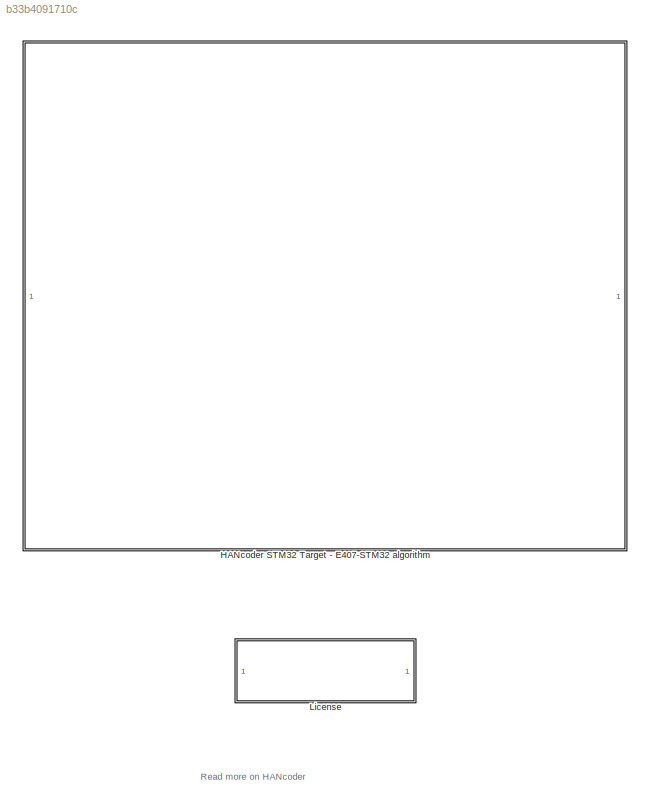
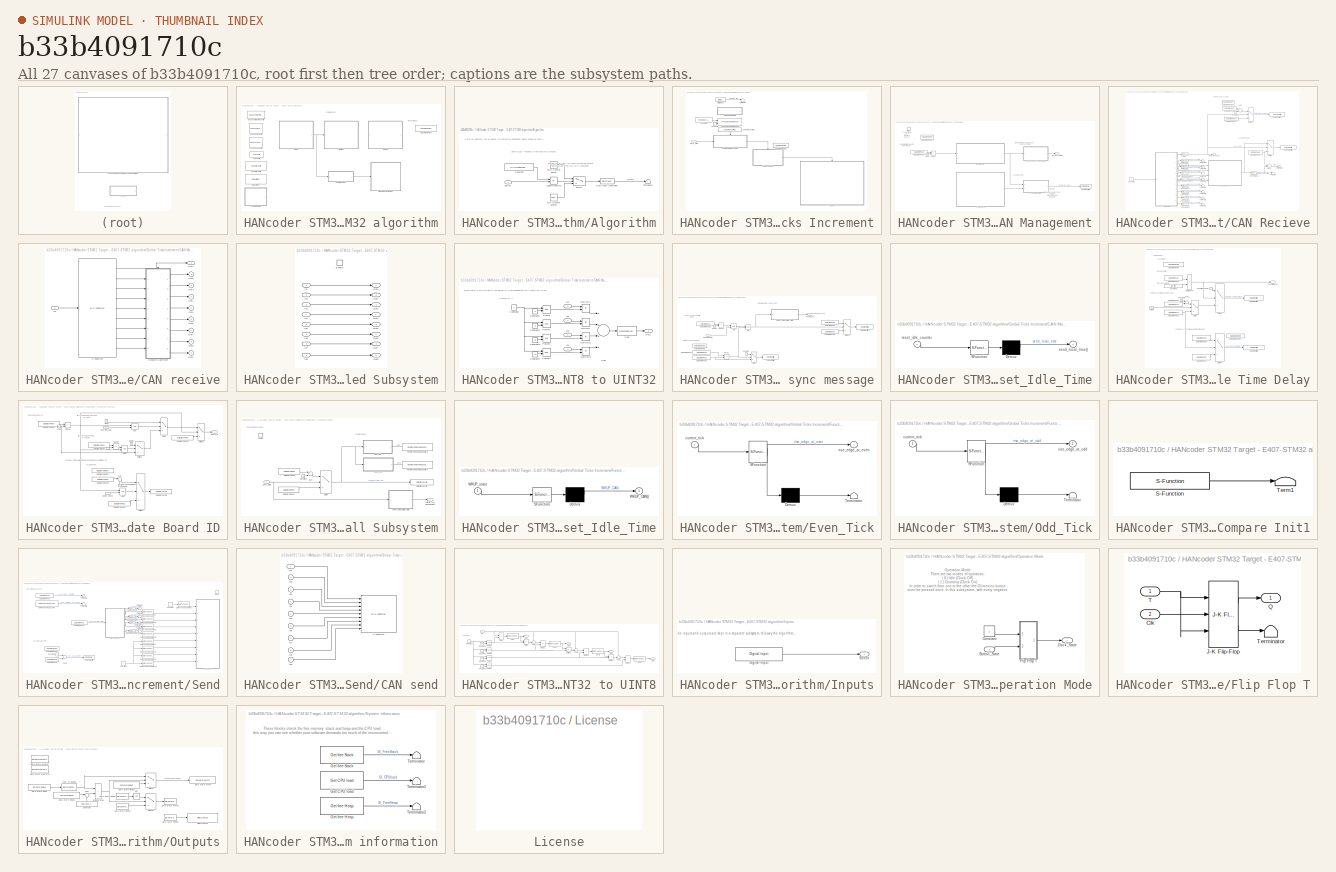
[diagram: thumbnail index - all 27 canvases of the model, root first then tree order]
MODEL slx_b33b4091710c
KIND model
CONFIG AbsTol = auto
CONFIG EnableMultiTasking = off
CONFIG FixedStep = 0.01
CONFIG MaxStep = auto
CONFIG MinStep = auto
CONFIG PreLoadFcn = librarySetup\neval([bdroot,'_startup']) %Calling [modelName]_startup.m
CONFIG RelTol = 1e-3
CONFIG SampleTimeConstraint = Unconstrained
CONFIG Solver = FixedStepDiscrete
CONFIG SolverName = FixedStepDiscrete
CONFIG StartTime = 0.0
CONFIG StopTime = 1
BLOCK [SubSystem] HANcoder STM32 Target - E407-STM32 algorithm
  CopyFcn = HANcoderChecks('Copy');
  MoveFcn = HANcoderChecks('MoveE407');
  NameChangeFcn = HANcoderChecks('NameChangeE407');
  Ports = []
  RequestExecContextInheritance = off
BLOCK [SubSystem] HANcoder STM32 Target - E407-STM32 algorithm/Algorithm
  Ports = [1]
  RequestExecContextInheritance = off
BLOCK [Reference] HANcoder STM32 Target - E407-STM32 algorithm/Algorithm/10Hz Counter Limiter  REF=simulink/Sources/Counter
Limited
  Ports = [0, 1]
  SourceBlock = simulink/Sources/Counter\nLimited
  SourceProductBaseCode = SL
  SourceProductName = Simulink
  SourceType = Counter Limited
BLOCK [Reference] HANcoder STM32 Target - E407-STM32 algorithm/Algorithm/5Hz Counter Limited  REF=simulink/Sources/Counter
Limited
  Ports = [0, 1]
  SourceBlock = simulink/Sources/Counter\nLimited
  SourceProductBaseCode = SL
  SourceProductName = Simulink
  SourceType = Counter Limited
BLOCK [Inport] HANcoder STM32 Target - E407-STM32 algorithm/Algorithm/Button
  IconDisplay = Port number
BLOCK [Constant] HANcoder STM32 Target - E407-STM32 algorithm/Algorithm/Constant
  OutDataTypeStr = boolean
  Value = HANtuneOverride
BLOCK [DataTypeConversion] HANcoder STM32 Target - E407-STM32 algorithm/Algorithm/Data Type Conversion
  OutDataTypeStr = boolean
  RndMeth = Floor
  SaturateOnIntegerOverflow = off
BLOCK [Logic] HANcoder STM32 Target - E407-STM32 algorithm/Algorithm/Logical Operator
  AllPortsSameDT = off
  Operator = OR
  OutDataTypeStr = boolean
  Ports = [2, 1]
BLOCK [Switch] HANcoder STM32 Target - E407-STM32 algorithm/Algorithm/Switch
  Criteria = u2 > Threshold
  InputSameDT = off
  SaturateOnIntegerOverflow = off
BLOCK [Terminator] HANcoder STM32 Target - E407-STM32 algorithm/Algorithm/Terminator
BLOCK [Reference] HANcoder STM32 Target - E407-STM32 algorithm/Base Sample Time config  REF=HANcoder_STM32_Target/STM32-E407/System Config/Base Sample Time config
  Description = HANcoder Target STM32-E407 blockset version 0.5
  Ports = []
  SourceBlock = HANcoder_STM32_Target/STM32-E407/System Config/Base Sample Time config
  SourceProductName = HANcoder STM32 Target
  SourceType = Base Sample Time config
  Tag = HANcoder_TARGET_STM32_E407
  UserDataPersistent = on
BLOCK [Reference] HANcoder STM32 Target - E407-STM32 algorithm/Build settings  REF=HANcoder_STM32_Target/STM32-E407/System Config/Build settings
  Ports = []
  SourceBlock = HANcoder_STM32_Target/STM32-E407/System Config/Build settings
  SourceProductName = HANcoder STM32 Target
  SourceType = Build Settings
  Tag = HANcoder_TARGET_STM32_E407
  UserDataPersistent = on
BLOCK [Reference] HANcoder STM32 Target - E407-STM32 algorithm/CAN config  REF=HANcoder_STM32_Target/STM32-E407/System Config/CAN config
  Ports = []
  SourceBlock = HANcoder_STM32_Target/STM32-E407/System Config/CAN config
  SourceProductName = HANcoder STM32 Target
  SourceType = CAN config
  Tag = HANcoder_TARGET_STM32_E407
  UserDataPersistent = on
BLOCK [Reference] HANcoder STM32 Target - E407-STM32 algorithm/Custom ID config  REF=HANcoder_STM32_Target/STM32-E407/System Config/Custom ID config
  Ports = []
  SourceBlock = HANcoder_STM32_Target/STM32-E407/System Config/Custom ID config
  SourceProductName = HANcoder STM32 Target
  SourceType = Custom ID config
  Tag = HANcoder_TARGET_STM32_E407
  UserDataPersistent = on
BLOCK [DataStoreMemory] HANcoder STM32 Target - E407-STM32 algorithm/Data Store Memory2
  DataStoreName = local_ticks_mem_IRQ
  OutDataTypeStr = uint32
  ReadBeforeWriteMsg = warning
  ShowAdditionalParam = off
  WriteAfterReadMsg = warning
  WriteAfterWriteMsg = warning
BLOCK [SubSystem] HANcoder STM32 Target - E407-STM32 algorithm/Global Ticks Increment
  Ports = [1]
  RequestExecContextInheritance = off
BLOCK [SubSystem] HANcoder STM32 Target - E407-STM32 algorithm/Global Ticks Increment/CAN Management
  Ports = [0, 1, 0, 1]
  RequestExecContextInheritance = off
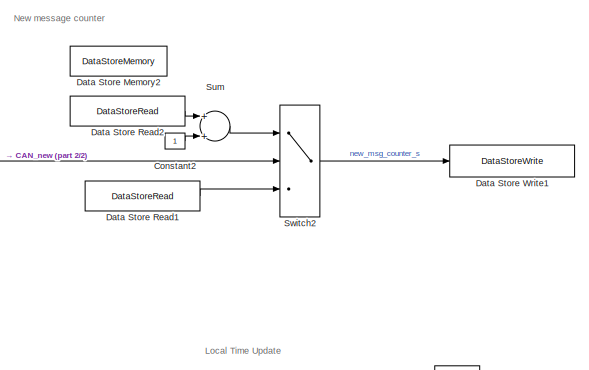
[diagram: HANcoder STM32 Target - E407-STM32 algorithm/Global Ticks Increment/CAN Management/CAN Recieve - part 1/2, top right region]
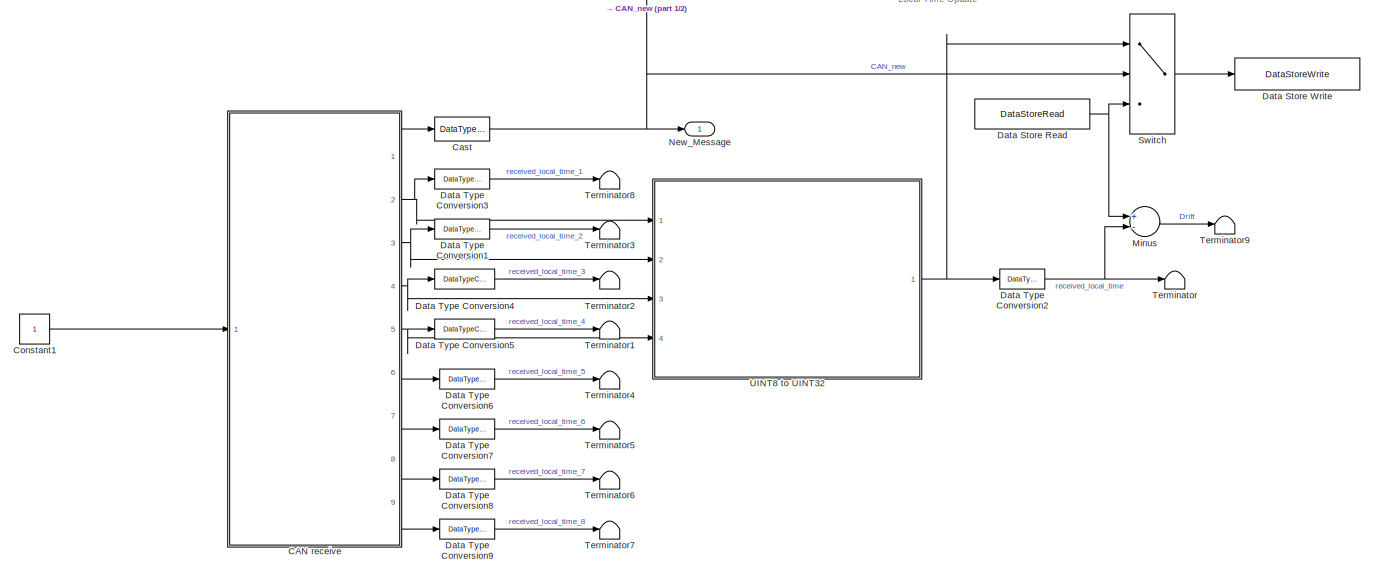
[diagram: HANcoder STM32 Target - E407-STM32 algorithm/Global Ticks Increment/CAN Management/CAN Recieve - part 2/2, full width, bottom band]
BLOCK [SubSystem] HANcoder STM32 Target - E407-STM32 algorithm/Global Ticks Increment/CAN Management/CAN Recieve
  Ports = [0, 1]
  RequestExecContextInheritance = off
BLOCK [SubSystem] HANcoder STM32 Target - E407-STM32 algorithm/Global Ticks Increment/CAN Management/CAN Recieve/CAN receive
  AncestorBlock = HANcoder_STM32_Target/STM32-E407/CAN/CAN/CAN receive
  MoveFcn = drawLogos
  Ports = [1, 9]
  RequestExecContextInheritance = off
  Tag = HANcoder_TARGET_STM32_E407
  UserDataPersistent = on
BLOCK [SubSystem] HANcoder STM32 Target - E407-STM32 algorithm/Global Ticks Increment/CAN Management/CAN Recieve/CAN receive/Enabled Subsystem
  Ports = [8, 8, 1]
  RequestExecContextInheritance = off
  TreatAsAtomicUnit = on
BLOCK [EnablePort] HANcoder STM32 Target - E407-STM32 algorithm/Global Ticks Increment/CAN Management/CAN Recieve/CAN receive/Enabled Subsystem/Enable
  Ports = []
BLOCK [Inport] HANcoder STM32 Target - E407-STM32 algorithm/Global Ticks Increment/CAN Management/CAN Recieve/CAN receive/Enabled Subsystem/In1
  IconDisplay = Port number
BLOCK [Inport] HANcoder STM32 Target - E407-STM32 algorithm/Global Ticks Increment/CAN Management/CAN Recieve/CAN receive/Enabled Subsystem/In2
  IconDisplay = Port number
  Port = 2
BLOCK [Inport] HANcoder STM32 Target - E407-STM32 algorithm/Global Ticks Increment/CAN Management/CAN Recieve/CAN receive/Enabled Subsystem/In3
  IconDisplay = Port number
  Port = 3
BLOCK [Inport] HANcoder STM32 Target - E407-STM32 algorithm/Global Ticks Increment/CAN Management/CAN Recieve/CAN receive/Enabled Subsystem/In4
  IconDisplay = Port number
  Port = 4
BLOCK [Inport] HANcoder STM32 Target - E407-STM32 algorithm/Global Ticks Increment/CAN Management/CAN Recieve/CAN receive/Enabled Subsystem/In5
  IconDisplay = Port number
  Port = 5
BLOCK [Inport] HANcoder STM32 Target - E407-STM32 algorithm/Global Ticks Increment/CAN Management/CAN Recieve/CAN receive/Enabled Subsystem/In6
  IconDisplay = Port number
  Port = 6
BLOCK [Inport] HANcoder STM32 Target - E407-STM32 algorithm/Global Ticks Increment/CAN Management/CAN Recieve/CAN receive/Enabled Subsystem/In7
  IconDisplay = Port number
  Port = 7
BLOCK [Inport] HANcoder STM32 Target - E407-STM32 algorithm/Global Ticks Increment/CAN Management/CAN Recieve/CAN receive/Enabled Subsystem/In8
  IconDisplay = Port number
  Port = 8
BLOCK [Outport] HANcoder STM32 Target - E407-STM32 algorithm/Global Ticks Increment/CAN Management/CAN Recieve/CAN receive/Enabled Subsystem/Out1
  IconDisplay = Port number
BLOCK [Outport] HANcoder STM32 Target - E407-STM32 algorithm/Global Ticks Increment/CAN Management/CAN Recieve/CAN receive/Enabled Subsystem/Out2
  IconDisplay = Port number
  Port = 2
BLOCK [Outport] HANcoder STM32 Target - E407-STM32 algorithm/Global Ticks Increment/CAN Management/CAN Recieve/CAN receive/Enabled Subsystem/Out3
  IconDisplay = Port number
  Port = 3
BLOCK [Outport] HANcoder STM32 Target - E407-STM32 algorithm/Global Ticks Increment/CAN Management/CAN Recieve/CAN receive/Enabled Subsystem/Out4
  IconDisplay = Port number
  Port = 4
BLOCK [Outport] HANcoder STM32 Target - E407-STM32 algorithm/Global Ticks Increment/CAN Management/CAN Recieve/CAN receive/Enabled Subsystem/Out5
  IconDisplay = Port number
  Port = 5
BLOCK [Outport] HANcoder STM32 Target - E407-STM32 algorithm/Global Ticks Increment/CAN Management/CAN Recieve/CAN receive/Enabled Subsystem/Out6
  IconDisplay = Port number
  Port = 6
BLOCK [Outport] HANcoder STM32 Target - E407-STM32 algorithm/Global Ticks Increment/CAN Management/CAN Recieve/CAN receive/Enabled Subsystem/Out7
  IconDisplay = Port number
  Port = 7
BLOCK [Outport] HANcoder STM32 Target - E407-STM32 algorithm/Global Ticks Increment/CAN Management/CAN Recieve/CAN receive/Enabled Subsystem/Out8
  IconDisplay = Port number
  Port = 8
BLOCK [Inport] HANcoder STM32 Target - E407-STM32 algorithm/Global Ticks Increment/CAN Management/CAN Recieve/CAN receive/In1
  IconDisplay = Port number
BLOCK [Outport] HANcoder STM32 Target - E407-STM32 algorithm/Global Ticks Increment/CAN Management/CAN Recieve/CAN receive/Out1
  IconDisplay = Port number
BLOCK [Outport] HANcoder STM32 Target - E407-STM32 algorithm/Global Ticks Increment/CAN Management/CAN Recieve/CAN receive/Out2
  IconDisplay = Port number
  Port = 2
BLOCK [Outport] HANcoder STM32 Target - E407-STM32 algorithm/Global Ticks Increment/CAN Management/CAN Recieve/CAN receive/Out3
  IconDisplay = Port number
  Port = 3
BLOCK [Outport] HANcoder STM32 Target - E407-STM32 algorithm/Global Ticks Increment/CAN Management/CAN Recieve/CAN receive/Out4
  IconDisplay = Port number
  Port = 4
BLOCK [Outport] HANcoder STM32 Target - E407-STM32 algorithm/Global Ticks Increment/CAN Management/CAN Recieve/CAN receive/Out5
  IconDisplay = Port number
  Port = 5
BLOCK [Outport] HANcoder STM32 Target - E407-STM32 algorithm/Global Ticks Increment/CAN Management/CAN Recieve/CAN receive/Out6
  IconDisplay = Port number
  Port = 6
BLOCK [Outport] HANcoder STM32 Target - E407-STM32 algorithm/Global Ticks Increment/CAN Management/CAN Recieve/CAN receive/Out7
  IconDisplay = Port number
  Port = 7
BLOCK [Outport] HANcoder STM32 Target - E407-STM32 algorithm/Global Ticks Increment/CAN Management/CAN Recieve/CAN receive/Out8
  IconDisplay = Port number
  Port = 8
BLOCK [Outport] HANcoder STM32 Target - E407-STM32 algorithm/Global Ticks Increment/CAN Management/CAN Recieve/CAN receive/Out9
  IconDisplay = Port number
  Port = 9
BLOCK [M-S-Function] HANcoder STM32 Target - E407-STM32 algorithm/Global Ticks Increment/CAN Management/CAN Recieve/CAN receive/S-Function
  FunctionName = sfcn_can_receive
  Parameters = tsamp, canBus, outputNumber, dataType, byteOrder
  Ports = [1, 9]
BLOCK [DataTypeConversion] HANcoder STM32 Target - E407-STM32 algorithm/Global Ticks Increment/CAN Management/CAN Recieve/Cast
  OutDataTypeStr = boolean
  RndMeth = Floor
  SaturateOnIntegerOverflow = off
BLOCK [Constant] HANcoder STM32 Target - E407-STM32 algorithm/Global Ticks Increment/CAN Management/CAN Recieve/Constant1
  OutDataTypeStr = uint32
BLOCK [Constant] HANcoder STM32 Target - E407-STM32 algorithm/Global Ticks Increment/CAN Management/CAN Recieve/Constant2
  OutDataTypeStr = uint32
BLOCK [DataStoreMemory] HANcoder STM32 Target - E407-STM32 algorithm/Global Ticks Increment/CAN Management/CAN Recieve/Data Store Memory2
  DataStoreName = new_msg_counter
  OutDataTypeStr = uint32
  ReadBeforeWriteMsg = warning
  ShowAdditionalParam = off
  WriteAfterReadMsg = warning
  WriteAfterWriteMsg = warning
BLOCK [DataStoreRead] HANcoder STM32 Target - E407-STM32 algorithm/Global Ticks Increment/CAN Management/CAN Recieve/Data Store Read
  DataStoreName = local_ticks_mem_IRQ
  Ports = [0, 1]
BLOCK [DataStoreRead] HANcoder STM32 Target - E407-STM32 algorithm/Global Ticks Increment/CAN Management/CAN Recieve/Data Store Read1
  DataStoreName = new_msg_counter
  Ports = [0, 1]
BLOCK [DataStoreRead] HANcoder STM32 Target - E407-STM32 algorithm/Global Ticks Increment/CAN Management/CAN Recieve/Data Store Read2
  DataStoreName = new_msg_counter
  Ports = [0, 1]
BLOCK [DataStoreWrite] HANcoder STM32 Target - E407-STM32 algorithm/Global Ticks Increment/CAN Management/CAN Recieve/Data Store Write
  DataStoreName = local_ticks_mem_IRQ
  Ports = [1]
BLOCK [DataStoreWrite] HANcoder STM32 Target - E407-STM32 algorithm/Global Ticks Increment/CAN Management/CAN Recieve/Data Store Write1
  DataStoreName = new_msg_counter
  Ports = [1]
BLOCK [DataTypeConversion] HANcoder STM32 Target - E407-STM32 algorithm/Global Ticks Increment/CAN Management/CAN Recieve/Data Type Conversion1
  OutDataTypeStr = double
  RndMeth = Floor
  SaturateOnIntegerOverflow = off
BLOCK [DataTypeConversion] HANcoder STM32 Target - E407-STM32 algorithm/Global Ticks Increment/CAN Management/CAN Recieve/Data Type Conversion2
  OutDataTypeStr = double
  RndMeth = Floor
  SaturateOnIntegerOverflow = off
BLOCK [DataTypeConversion] HANcoder STM32 Target - E407-STM32 algorithm/Global Ticks Increment/CAN Management/CAN Recieve/Data Type Conversion3
  OutDataTypeStr = double
  RndMeth = Floor
  SaturateOnIntegerOverflow = off
BLOCK [DataTypeConversion] HANcoder STM32 Target - E407-STM32 algorithm/Global Ticks Increment/CAN Management/CAN Recieve/Data Type Conversion4
  OutDataTypeStr = double
  RndMeth = Floor
  SaturateOnIntegerOverflow = off
BLOCK [DataTypeConversion] HANcoder STM32 Target - E407-STM32 algorithm/Global Ticks Increment/CAN Management/CAN Recieve/Data Type Conversion5
  OutDataTypeStr = double
  RndMeth = Floor
  SaturateOnIntegerOverflow = off
BLOCK [DataTypeConversion] HANcoder STM32 Target - E407-STM32 algorithm/Global Ticks Increment/CAN Management/CAN Recieve/Data Type Conversion6
  OutDataTypeStr = double
  RndMeth = Floor
  SaturateOnIntegerOverflow = off
BLOCK [DataTypeConversion] HANcoder STM32 Target - E407-STM32 algorithm/Global Ticks Increment/CAN Management/CAN Recieve/Data Type Conversion7
  OutDataTypeStr = double
  RndMeth = Floor
  SaturateOnIntegerOverflow = off
BLOCK [DataTypeConversion] HANcoder STM32 Target - E407-STM32 algorithm/Global Ticks Increment/CAN Management/CAN Recieve/Data Type Conversion8
  OutDataTypeStr = double
  RndMeth = Floor
  SaturateOnIntegerOverflow = off
BLOCK [DataTypeConversion] HANcoder STM32 Target - E407-STM32 algorithm/Global Ticks Increment/CAN Management/CAN Recieve/Data Type Conversion9
  OutDataTypeStr = double
  RndMeth = Floor
  SaturateOnIntegerOverflow = off
BLOCK [Sum] HANcoder STM32 Target - E407-STM32 algorithm/Global Ticks Increment/CAN Management/CAN Recieve/Minus
  InputSameDT = off
  Inputs = +-
  OutDataTypeStr = Inherit: Inherit via internal rule
  Ports = [2, 1]
  SaturateOnIntegerOverflow = off
BLOCK [Outport] HANcoder STM32 Target - E407-STM32 algorithm/Global Ticks Increment/CAN Management/CAN Recieve/New_Message
  IconDisplay = Port number
BLOCK [Sum] HANcoder STM32 Target - E407-STM32 algorithm/Global Ticks Increment/CAN Management/CAN Recieve/Sum
  InputSameDT = off
  OutDataTypeStr = Inherit: Inherit via internal rule
  Ports = [2, 1]
  SaturateOnIntegerOverflow = off
BLOCK [Switch] HANcoder STM32 Target - E407-STM32 algorithm/Global Ticks Increment/CAN Management/CAN Recieve/Switch
  Criteria = u2 > Threshold
  InputSameDT = off
  SaturateOnIntegerOverflow = off
BLOCK [Switch] HANcoder STM32 Target - E407-STM32 algorithm/Global Ticks Increment/CAN Management/CAN Recieve/Switch2
  Criteria = u2 > Threshold
  InputSameDT = off
  SaturateOnIntegerOverflow = off
BLOCK [Terminator] HANcoder STM32 Target - E407-STM32 algorithm/Global Ticks Increment/CAN Management/CAN Recieve/Terminator
BLOCK [Terminator] HANcoder STM32 Target - E407-STM32 algorithm/Global Ticks Increment/CAN Management/CAN Recieve/Terminator1
BLOCK [Terminator] HANcoder STM32 Target - E407-STM32 algorithm/Global Ticks Increment/CAN Management/CAN Recieve/Terminator2
BLOCK [Terminator] HANcoder STM32 Target - E407-STM32 algorithm/Global Ticks Increment/CAN Management/CAN Recieve/Terminator3
BLOCK [Terminator] HANcoder STM32 Target - E407-STM32 algorithm/Global Ticks Increment/CAN Management/CAN Recieve/Terminator4
BLOCK [Terminator] HANcoder STM32 Target - E407-STM32 algorithm/Global Ticks Increment/CAN Management/CAN Recieve/Terminator5
BLOCK [Terminator] HANcoder STM32 Target - E407-STM32 algorithm/Global Ticks Increment/CAN Management/CAN Recieve/Terminator6
BLOCK [Terminator] HANcoder STM32 Target - E407-STM32 algorithm/Global Ticks Increment/CAN Management/CAN Recieve/Terminator7
BLOCK [Terminator] HANcoder STM32 Target - E407-STM32 algorithm/Global Ticks Increment/CAN Management/CAN Recieve/Terminator8
BLOCK [Terminator] HANcoder STM32 Target - E407-STM32 algorithm/Global Ticks Increment/CAN Management/CAN Recieve/Terminator9
BLOCK [SubSystem] HANcoder STM32 Target - E407-STM32 algorithm/Global Ticks Increment/CAN Management/CAN Recieve/UINT8 to UINT32
  Ports = [4, 1]
  RequestExecContextInheritance = off
BLOCK [DataTypeConversion] HANcoder STM32 Target - E407-STM32 algorithm/Global Ticks Increment/CAN Management/CAN Recieve/UINT8 to UINT32/Cast
  OutDataTypeStr = uint32
  RndMeth = Floor
  SaturateOnIntegerOverflow = off
BLOCK [Constant] HANcoder STM32 Target - E407-STM32 algorithm/Global Ticks Increment/CAN Management/CAN Recieve/UINT8 to UINT32/Constant
  Value = 2
BLOCK [Constant] HANcoder STM32 Target - E407-STM32 algorithm/Global Ticks Increment/CAN Management/CAN Recieve/UINT8 to UINT32/Constant1
  Value = 0
BLOCK [Constant] HANcoder STM32 Target - E407-STM32 algorithm/Global Ticks Increment/CAN Management/CAN Recieve/UINT8 to UINT32/Constant2
  Value = 8
BLOCK [Constant] HANcoder STM32 Target - E407-STM32 algorithm/Global Ticks Increment/CAN Management/CAN Recieve/UINT8 to UINT32/Constant3
  Value = 16
BLOCK [Constant] HANcoder STM32 Target - E407-STM32 algorithm/Global Ticks Increment/CAN Management/CAN Recieve/UINT8 to UINT32/Constant4
  Value = 24
BLOCK [Inport] HANcoder STM32 Target - E407-STM32 algorithm/Global Ticks Increment/CAN Management/CAN Recieve/UINT8 to UINT32/In1
  IconDisplay = Port number
BLOCK [Inport] HANcoder STM32 Target - E407-STM32 algorithm/Global Ticks Increment/CAN Management/CAN Recieve/UINT8 to UINT32/In2
  IconDisplay = Port number
  Port = 2
BLOCK [Inport] HANcoder STM32 Target - E407-STM32 algorithm/Global Ticks Increment/CAN Management/CAN Recieve/UINT8 to UINT32/In3
  IconDisplay = Port number
  Port = 3
BLOCK [Inport] HANcoder STM32 Target - E407-STM32 algorithm/Global Ticks Increment/CAN Management/CAN Recieve/UINT8 to UINT32/In4
  IconDisplay = Port number
  Port = 4
BLOCK [Product] HANcoder STM32 Target - E407-STM32 algorithm/Global Ticks Increment/CAN Management/CAN Recieve/UINT8 to UINT32/Multiply
  InputSameDT = off
  OutDataTypeStr = Inherit: Inherit via internal rule
  Ports = [2, 1]
  RndMeth = Floor
  SaturateOnIntegerOverflow = off
BLOCK [Product] HANcoder STM32 Target - E407-STM32 algorithm/Global Ticks Increment/CAN Management/CAN Recieve/UINT8 to UINT32/Multiply1
  InputSameDT = off
  OutDataTypeStr = Inherit: Inherit via internal rule
  Ports = [2, 1]
  RndMeth = Floor
  SaturateOnIntegerOverflow = off
BLOCK [Product] HANcoder STM32 Target - E407-STM32 algorithm/Global Ticks Increment/CAN Management/CAN Recieve/UINT8 to UINT32/Multiply2
  InputSameDT = off
  OutDataTypeStr = Inherit: Inherit via internal rule
  Ports = [2, 1]
  RndMeth = Floor
  SaturateOnIntegerOverflow = off
BLOCK [Product] HANcoder STM32 Target - E407-STM32 algorithm/Global Ticks Increment/CAN Management/CAN Recieve/UINT8 to UINT32/Multiply3
  InputSameDT = off
  OutDataTypeStr = Inherit: Inherit via internal rule
  Ports = [2, 1]
  RndMeth = Floor
  SaturateOnIntegerOverflow = off
BLOCK [Outport] HANcoder STM32 Target - E407-STM32 algorithm/Global Ticks Increment/CAN Management/CAN Recieve/UINT8 to UINT32/Out1
  IconDisplay = Port number
BLOCK [Math] HANcoder STM32 Target - E407-STM32 algorithm/Global Ticks Increment/CAN Management/CAN Recieve/UINT8 to UINT32/Power
  Operator = pow
  Ports = [2, 1]
BLOCK [Math] HANcoder STM32 Target - E407-STM32 algorithm/Global Ticks Increment/CAN Management/CAN Recieve/UINT8 to UINT32/Power1
  Operator = pow
  Ports = [2, 1]
BLOCK [Math] HANcoder STM32 Target - E407-STM32 algorithm/Global Ticks Increment/CAN Management/CAN Recieve/UINT8 to UINT32/Power2
  Operator = pow
  Ports = [2, 1]
BLOCK [Math] HANcoder STM32 Target - E407-STM32 algorithm/Global Ticks Increment/CAN Management/CAN Recieve/UINT8 to UINT32/Power3
  Operator = pow
  Ports = [2, 1]
BLOCK [Sum] HANcoder STM32 Target - E407-STM32 algorithm/Global Ticks Increment/CAN Management/CAN Recieve/UINT8 to UINT32/Sum
  InputSameDT = off
  Inputs = ++++
  OutDataTypeStr = Inherit: Inherit via internal rule
  Ports = [4, 1]
  SaturateOnIntegerOverflow = off
BLOCK [SubSystem] HANcoder STM32 Target - E407-STM32 algorithm/Global Ticks Increment/CAN Management/Check send sync message
  Ports = [1, 1]
  RequestExecContextInheritance = off
BLOCK [Logic] HANcoder STM32 Target - E407-STM32 algorithm/Global Ticks Increment/CAN Management/Check send sync message/AND
  AllPortsSameDT = off
  IconShape = distinctive
  OutDataTypeStr = boolean
  Ports = [2, 1]
BLOCK [SubSystem] HANcoder STM32 Target - E407-STM32 algorithm/Global Ticks Increment/CAN Management/Check send sync message/Check_Reset_Idle_Time
  ErrorFcn = Stateflow.Translate.translate
  PermitHierarchicalResolution = ExplicitOnly
  Ports = [1, 1]
  RequestExecContextInheritance = off
  SFBlockType = Chart
  TreatAsAtomicUnit = on
BLOCK [Demux] HANcoder STM32 Target - E407-STM32 algorithm/Global Ticks Increment/CAN Management/Check send sync message/Check_Reset_Idle_Time/ Demux 
  Outputs = 1
  Ports = [1, 1]
BLOCK [S-Function] HANcoder STM32 Target - E407-STM32 algorithm/Global Ticks Increment/CAN Management/Check send sync message/Check_Reset_Idle_Time/ SFunction 
  EnableBusSupport = on
  FunctionName = sf_sfun
  PortCounts = [1 1]
  Ports = [1, 1]
  SFcnIsStateOwnerBlock = off
  SFunctionDeploymentMode = off
  Tag = Stateflow S-Function HANcoder_E407_GTSync_v2 2
BLOCK [Inport] HANcoder STM32 Target - E407-STM32 algorithm/Global Ticks Increment/CAN Management/Check send sync message/Check_Reset_Idle_Time/reset_idle_counter
  IconDisplay = Port number
BLOCK [Outport] HANcoder STM32 Target - E407-STM32 algorithm/Global Ticks Increment/CAN Management/Check send sync message/Check_Reset_Idle_Time/send_local_time()
  IconDisplay = Port number
BLOCK [Constant] HANcoder STM32 Target - E407-STM32 algorithm/Global Ticks Increment/CAN Management/Check send sync message/Constant
  Value = 0
BLOCK [DataStoreMemory] HANcoder STM32 Target - E407-STM32 algorithm/Global Ticks Increment/CAN Management/Check send sync message/Data Store Memory
  DataStoreName = Master_trigger
  InitialValue = 1
  ReadBeforeWriteMsg = warning
  ShowAdditionalParam = off
  WriteAfterReadMsg = warning
  WriteAfterWriteMsg = warning
BLOCK [DataStoreRead] HANcoder STM32 Target - E407-STM32 algorithm/Global Ticks Increment/CAN Management/Check send sync message/Data Store Read
  DataStoreName = local_ticks_mem_IRQ
  Ports = [0, 1]
BLOCK [DataStoreRead] HANcoder STM32 Target - E407-STM32 algorithm/Global Ticks Increment/CAN Management/Check send sync message/Data Store Read1
  DataStoreName = message_buffer
  Ports = [0, 1]
BLOCK [DataStoreRead] HANcoder STM32 Target - E407-STM32 algorithm/Global Ticks Increment/CAN Management/Check send sync message/Data Store Read2
  DataStoreName = Board_ID
  Ports = [0, 1]
BLOCK [DataStoreRead] HANcoder STM32 Target - E407-STM32 algorithm/Global Ticks Increment/CAN Management/Check send sync message/Data Store Read3
  DataStoreName = Board_ID
  Ports = [0, 1]
BLOCK [DataStoreRead] HANcoder STM32 Target - E407-STM32 algorithm/Global Ticks Increment/CAN Management/Check send sync message/Data Store Read4
  DataStoreName = Master_trigger
  Ports = [0, 1]
BLOCK [DataStoreWrite] HANcoder STM32 Target - E407-STM32 algorithm/Global Ticks Increment/CAN Management/Check send sync message/Data Store Write
  DataStoreName = Master_trigger
  Ports = [1]
BLOCK [DataStoreWrite] HANcoder STM32 Target - E407-STM32 algorithm/Global Ticks Increment/CAN Management/Check send sync message/Data Store Write1
  DataStoreName = message_buffer
  Ports = [1]
BLOCK [RelationalOperator] HANcoder STM32 Target - E407-STM32 algorithm/Global Ticks Increment/CAN Management/Check send sync message/Equal
  InputSameDT = off
  Operator = ==
  OutDataTypeStr = boolean
  Ports = [2, 1]
  RndMeth = Simplest
BLOCK [RelationalOperator] HANcoder STM32 Target - E407-STM32 algorithm/Global Ticks Increment/CAN Management/Check send sync message/Equal1
  InputSameDT = off
  Operator = ==
  OutDataTypeStr = boolean
  Ports = [2, 1]
  RndMeth = Simplest
BLOCK [Outport] HANcoder STM32 Target - E407-STM32 algorithm/Global Ticks Increment/CAN Management/Check send sync message/Function Call
  IconDisplay = Port number
BLOCK [Constant] HANcoder STM32 Target - E407-STM32 algorithm/Global Ticks Increment/CAN Management/Check send sync message/Master
BLOCK [Logic] HANcoder STM32 Target - E407-STM32 algorithm/Global Ticks Increment/CAN Management/Check send sync message/OR
  AllPortsSameDT = off
  IconShape = distinctive
  Operator = OR
  OutDataTypeStr = boolean
  Ports = [2, 1]
BLOCK [Inport] HANcoder STM32 Target - E407-STM32 algorithm/Global Ticks Increment/CAN Management/Check send sync message/Reset Counter
  IconDisplay = Port number
BLOCK [Switch] HANcoder STM32 Target - E407-STM32 algorithm/Global Ticks Increment/CAN Management/Check send sync message/Switch
  Criteria = u2 > Threshold
  InputSameDT = off
  SaturateOnIntegerOverflow = off
BLOCK [Switch] HANcoder STM32 Target - E407-STM32 algorithm/Global Ticks Increment/CAN Management/Check send sync message/Switch2
  Criteria = u2 > Threshold
  InputSameDT = off
  SaturateOnIntegerOverflow = off
BLOCK [DataStoreMemory] HANcoder STM32 Target - E407-STM32 algorithm/Global Ticks Increment/CAN Management/Data Store Memory1
  DataStoreName = Board_ID
  ReadBeforeWriteMsg = warning
  ShowAdditionalParam = off
  WriteAfterReadMsg = warning
  WriteAfterWriteMsg = warning
BLOCK [DataStoreRead] HANcoder STM32 Target - E407-STM32 algorithm/Global Ticks Increment/CAN Management/Data Store Read4
  DataStoreName = Board_ID
  Ports = [0, 1]
BLOCK [DataStoreWrite] HANcoder STM32 Target - E407-STM32 algorithm/Global Ticks Increment/CAN Management/Data Store Write3
  DataStoreName = Board_ID
  Ports = [1]
BLOCK [RelationalOperator] HANcoder STM32 Target - E407-STM32 algorithm/Global Ticks Increment/CAN Management/Equal
  InputSameDT = off
  Operator = ~=
  OutDataTypeStr = boolean
  Ports = [2, 1]
  RndMeth = Simplest
BLOCK [SubSystem] HANcoder STM32 Target - E407-STM32 algorithm/Global Ticks Increment/CAN Management/Idle Time Delay
  Ports = [1, 1]
  RequestExecContextInheritance = off
BLOCK [Inport] HANcoder STM32 Target - E407-STM32 algorithm/Global Ticks Increment/CAN Management/Idle Time Delay/Activate
  IconDisplay = Port number
BLOCK [Constant] HANcoder STM32 Target - E407-STM32 algorithm/Global Ticks Increment/CAN Management/Idle Time Delay/Constant1
  Value = idle_time
BLOCK [Constant] HANcoder STM32 Target - E407-STM32 algorithm/Global Ticks Increment/CAN Management/Idle Time Delay/Constant2
BLOCK [Outport] HANcoder STM32 Target - E407-STM32 algorithm/Global Ticks Increment/CAN Management/Idle Time Delay/Counter Reset
  IconDisplay = Port number
BLOCK [DataStoreMemory] HANcoder STM32 Target - E407-STM32 algorithm/Global Ticks Increment/CAN Management/Idle Time Delay/Data Store Memory
  DataStoreName = idle_time_counter
  ReadBeforeWriteMsg = warning
  ShowAdditionalParam = off
  WriteAfterReadMsg = warning
  WriteAfterWriteMsg = warning
BLOCK [DataStoreMemory] HANcoder STM32 Target - E407-STM32 algorithm/Global Ticks Increment/CAN Management/Idle Time Delay/Data Store Memory1
  DataStoreName = Local_Ticks_Init_Delay
  ReadBeforeWriteMsg = warning
  ShowAdditionalParam = off
  WriteAfterReadMsg = warning
  WriteAfterWriteMsg = warning
BLOCK [DataStoreRead] HANcoder STM32 Target - E407-STM32 algorithm/Global Ticks Increment/CAN Management/Idle Time Delay/Data Store Read
  DataStoreName = local_ticks_mem_IRQ
  Ports = [0, 1]
BLOCK [DataStoreRead] HANcoder STM32 Target - E407-STM32 algorithm/Global Ticks Increment/CAN Management/Idle Time Delay/Data Store Read1
  DataStoreName = idle_time_counter
  Ports = [0, 1]
BLOCK [DataStoreRead] HANcoder STM32 Target - E407-STM32 algorithm/Global Ticks Increment/CAN Management/Idle Time Delay/Data Store Read2
  DataStoreName = idle_time_counter
  Ports = [0, 1]
BLOCK [DataStoreRead] HANcoder STM32 Target - E407-STM32 algorithm/Global Ticks Increment/CAN Management/Idle Time Delay/Data Store Read3
  DataStoreName = idle_time_counter
  Ports = [0, 1]
BLOCK [DataStoreRead] HANcoder STM32 Target - E407-STM32 algorithm/Global Ticks Increment/CAN Management/Idle Time Delay/Data Store Read4
  DataStoreName = Local_Ticks_Init_Delay
  Ports = [0, 1]
BLOCK [DataStoreWrite] HANcoder STM32 Target - E407-STM32 algorithm/Global Ticks Increment/CAN Management/Idle Time Delay/Data Store Write
  DataStoreName = Local_Ticks_Init_Delay
  Ports = [1]
BLOCK [DataStoreWrite] HANcoder STM32 Target - E407-STM32 algorithm/Global Ticks Increment/CAN Management/Idle Time Delay/Data Store Write1
  DataStoreName = idle_time_counter
  Ports = [1]
BLOCK [RelationalOperator] HANcoder STM32 Target - E407-STM32 algorithm/Global Ticks Increment/CAN Management/Idle Time Delay/GreaterThan
  InputSameDT = off
  Operator = >
  OutDataTypeStr = boolean
  Ports = [2, 1]
  RndMeth = Simplest
BLOCK [Constant] HANcoder STM32 Target - E407-STM32 algorithm/Global Ticks Increment/CAN Management/Idle Time Delay/Reset Idle Counter
  Value = 0
BLOCK [Sum] HANcoder STM32 Target - E407-STM32 algorithm/Global Ticks Increment/CAN Management/Idle Time Delay/Sum1
  InputSameDT = off
  OutDataTypeStr = Inherit: Inherit via internal rule
  Ports = [2, 1]
  SaturateOnIntegerOverflow = off
BLOCK [Switch] HANcoder STM32 Target - E407-STM32 algorithm/Global Ticks Increment/CAN Management/Idle Time Delay/Switch
  Criteria = u2 > Threshold
  InputSameDT = off
  SaturateOnIntegerOverflow = off
BLOCK [Switch] HANcoder STM32 Target - E407-STM32 algorithm/Global Ticks Increment/CAN Management/Idle Time Delay/Switch1
  Criteria = u2 > Threshold
  InputSameDT = off
  SaturateOnIntegerOverflow = off
BLOCK [Switch] HANcoder STM32 Target - E407-STM32 algorithm/Global Ticks Increment/CAN Management/Idle Time Delay/Switch2
  InputSameDT = off
  SaturateOnIntegerOverflow = off
  Threshold = 2
BLOCK [Outport] HANcoder STM32 Target - E407-STM32 algorithm/Global Ticks Increment/CAN Management/Send Local Time
  IconDisplay = Port number
BLOCK [Constant] HANcoder STM32 Target - E407-STM32 algorithm/Global Ticks Increment/CAN Management/Slave
  Value = 3
BLOCK [TriggerPort] HANcoder STM32 Target - E407-STM32 algorithm/Global Ticks Increment/CAN Management/Trigger
  PortDimensions = 1
  Ports = []
  StatesWhenEnabling = held
  TriggerType = function-call
  VariantControl = Variant
BLOCK [SubSystem] HANcoder STM32 Target - E407-STM32 algorithm/Global Ticks Increment/CAN Management/Update Board ID
  Ports = [2, 1]
  RequestExecContextInheritance = off
BLOCK [Constant] HANcoder STM32 Target - E407-STM32 algorithm/Global Ticks Increment/CAN Management/Update Board ID/ 
  Value = 2
BLOCK [Logic] HANcoder STM32 Target - E407-STM32 algorithm/Global Ticks Increment/CAN Management/Update Board ID/AND
  AllPortsSameDT = off
  IconShape = distinctive
  OutDataTypeStr = boolean
  Ports = [2, 1]
BLOCK [Logic] HANcoder STM32 Target - E407-STM32 algorithm/Global Ticks Increment/CAN Management/Update Board ID/AND1
  AllPortsSameDT = off
  IconShape = distinctive
  OutDataTypeStr = boolean
  Ports = [2, 1]
BLOCK [Logic] HANcoder STM32 Target - E407-STM32 algorithm/Global Ticks Increment/CAN Management/Update Board ID/AND2
  AllPortsSameDT = off
  IconShape = distinctive
  OutDataTypeStr = boolean
  Ports = [2, 1]
BLOCK [Outport] HANcoder STM32 Target - E407-STM32 algorithm/Global Ticks Increment/CAN Management/Update Board ID/Board_ID
  IconDisplay = Port number
BLOCK [Inport] HANcoder STM32 Target - E407-STM32 algorithm/Global Ticks Increment/CAN Management/Update Board ID/Conter_Reset
  IconDisplay = Port number
BLOCK [DataStoreMemory] HANcoder STM32 Target - E407-STM32 algorithm/Global Ticks Increment/CAN Management/Update Board ID/Data Store Memory
  DataStoreName = Number_of_Resets
  ReadBeforeWriteMsg = warning
  ShowAdditionalParam = off
  WriteAfterReadMsg = warning
  WriteAfterWriteMsg = warning
BLOCK [DataStoreRead] HANcoder STM32 Target - E407-STM32 algorithm/Global Ticks Increment/CAN Management/Update Board ID/Data Store Read
  DataStoreName = Number_of_Resets
  Ports = [0, 1]
BLOCK [DataStoreRead] HANcoder STM32 Target - E407-STM32 algorithm/Global Ticks Increment/CAN Management/Update Board ID/Data Store Read1
  DataStoreName = Number_of_Resets
  Ports = [0, 1]
BLOCK [DataStoreRead] HANcoder STM32 Target - E407-STM32 algorithm/Global Ticks Increment/CAN Management/Update Board ID/Data Store Read2
  DataStoreName = Board_ID
  Ports = [0, 1]
BLOCK [DataStoreRead] HANcoder STM32 Target - E407-STM32 algorithm/Global Ticks Increment/CAN Management/Update Board ID/Data Store Read3
  DataStoreName = Number_of_Resets
  Ports = [0, 1]
BLOCK [DataStoreRead] HANcoder STM32 Target - E407-STM32 algorithm/Global Ticks Increment/CAN Management/Update Board ID/Data Store Read4
  DataStoreName = Board_ID
  Ports = [0, 1]
BLOCK [DataStoreWrite] HANcoder STM32 Target - E407-STM32 algorithm/Global Ticks Increment/CAN Management/Update Board ID/Data Store Write
  DataStoreName = Number_of_Resets
  Ports = [1]
BLOCK [RelationalOperator] HANcoder STM32 Target - E407-STM32 algorithm/Global Ticks Increment/CAN Management/Update Board ID/Equal1
  InputSameDT = off
  Operator = ==
  OutDataTypeStr = boolean
  Ports = [2, 1]
  RndMeth = Simplest
BLOCK [RelationalOperator] HANcoder STM32 Target - E407-STM32 algorithm/Global Ticks Increment/CAN Management/Update Board ID/Equal2
  InputSameDT = off
  Operator = ==
  OutDataTypeStr = boolean
  Ports = [2, 1]
  RndMeth = Simplest
BLOCK [Constant] HANcoder STM32 Target - E407-STM32 algorithm/Global Ticks Increment/CAN Management/Update Board ID/Free
  Value = 0
BLOCK [Constant] HANcoder STM32 Target - E407-STM32 algorithm/Global Ticks Increment/CAN Management/Update Board ID/Increase Number of Resets
BLOCK [Constant] HANcoder STM32 Target - E407-STM32 algorithm/Global Ticks Increment/CAN Management/Update Board ID/Master
BLOCK [Inport] HANcoder STM32 Target - E407-STM32 algorithm/Global Ticks Increment/CAN Management/Update Board ID/New_Message
  IconDisplay = Port number
  Port = 2
BLOCK [Constant] HANcoder STM32 Target - E407-STM32 algorithm/Global Ticks Increment/CAN Management/Update Board ID/Slave
  Value = 2
BLOCK [Sum] HANcoder STM32 Target - E407-STM32 algorithm/Global Ticks Increment/CAN Management/Update Board ID/Sum
  IconShape = round
  InputSameDT = off
  Inputs = |++
  OutDataTypeStr = Inherit: Inherit via internal rule
  Ports = [2, 1]
  SaturateOnIntegerOverflow = off
BLOCK [Switch] HANcoder STM32 Target - E407-STM32 algorithm/Global Ticks Increment/CAN Management/Update Board ID/Switch
  Criteria = u2 > Threshold
  InputSameDT = off
  SaturateOnIntegerOverflow = off
BLOCK [Switch] HANcoder STM32 Target - E407-STM32 algorithm/Global Ticks Increment/CAN Management/Update Board ID/Switch1
  Criteria = u2 > Threshold
  InputSameDT = off
  SaturateOnIntegerOverflow = off
BLOCK [Switch] HANcoder STM32 Target - E407-STM32 algorithm/Global Ticks Increment/CAN Management/Update Board ID/Switch2
  Criteria = u2 > Threshold
  InputSameDT = off
  SaturateOnIntegerOverflow = off
BLOCK [Switch] HANcoder STM32 Target - E407-STM32 algorithm/Global Ticks Increment/CAN Management/Update Board ID/Switch3
  Criteria = u2 > Threshold
  InputSameDT = off
  SaturateOnIntegerOverflow = off
BLOCK [Inport] HANcoder STM32 Target - E407-STM32 algorithm/Global Ticks Increment/Clock_State
  IconDisplay = Port number
BLOCK [Reference] HANcoder STM32 Target - E407-STM32 algorithm/Global Ticks Increment/Compare Event IRQ  REF=HANcoder_STM32_Target/STM32-E407/Timer Outputs/Compare Event IRQ
  Ports = [0, 1]
  SourceBlock = HANcoder_STM32_Target/STM32-E407/Timer Outputs/Compare Event IRQ
  SourceProductName = HANcoder STM32 Target
  SourceType = Compare Event IRQ
  Tag = HANcoder_TARGET_STM32_E407
  UserDataPersistent = on
BLOCK [Constant] HANcoder STM32 Target - E407-STM32 algorithm/Global Ticks Increment/Constant1
  OutDataTypeStr = uint16
  Value = frequency_IRQ - 1
BLOCK [Constant] HANcoder STM32 Target - E407-STM32 algorithm/Global Ticks Increment/Constant2
  OutDataTypeStr = uint8
  Value = 3
BLOCK [DataStoreMemory] HANcoder STM32 Target - E407-STM32 algorithm/Global Ticks Increment/Data Store Memory2
  DataStoreName = message_buffer
  OutDataTypeStr = uint32
  ReadBeforeWriteMsg = warning
  ShowAdditionalParam = off
  WriteAfterReadMsg = warning
  WriteAfterWriteMsg = warning
BLOCK [DigitalClock] HANcoder STM32 Target - E407-STM32 algorithm/Global Ticks Increment/Digital Clock
  SampleTime = 0.01
BLOCK [SubSystem] HANcoder STM32 Target - E407-STM32 algorithm/Global Ticks Increment/Function-Call Subsystem
  Ports = [1, 1, 0, 1]
  RequestExecContextInheritance = off
  TreatAsAtomicUnit = on
BLOCK [SubSystem] HANcoder STM32 Target - E407-STM32 algorithm/Global Ticks Increment/Function-Call Subsystem/Check_Reset_Idle_Time
  ErrorFcn = Stateflow.Translate.translate
  PermitHierarchicalResolution = ExplicitOnly
  Ports = [1, 1]
  RequestExecContextInheritance = off
  SFBlockType = Chart
  TreatAsAtomicUnit = on
BLOCK [Demux] HANcoder STM32 Target - E407-STM32 algorithm/Global Ticks Increment/Function-Call Subsystem/Check_Reset_Idle_Time/ Demux 
  Outputs = 1
  Ports = [1, 1]
BLOCK [S-Function] HANcoder STM32 Target - E407-STM32 algorithm/Global Ticks Increment/Function-Call Subsystem/Check_Reset_Idle_Time/ SFunction 
  EnableBusSupport = on
  FunctionName = sf_sfun
  PortCounts = [1 1]
  Ports = [1, 1]
  SFcnIsStateOwnerBlock = off
  SFunctionDeploymentMode = off
  Tag = Stateflow S-Function HANcoder_E407_GTSync_v2 4
BLOCK [Outport] HANcoder STM32 Target - E407-STM32 algorithm/Global Ticks Increment/Function-Call Subsystem/Check_Reset_Idle_Time/WKUP_CAN()
  IconDisplay = Port number
BLOCK [Inport] HANcoder STM32 Target - E407-STM32 algorithm/Global Ticks Increment/Function-Call Subsystem/Check_Reset_Idle_Time/WKUP_state
  IconDisplay = Port number
BLOCK [Inport] HANcoder STM32 Target - E407-STM32 algorithm/Global Ticks Increment/Function-Call Subsystem/Clock_State
  IconDisplay = Port number
BLOCK [Constant] HANcoder STM32 Target - E407-STM32 algorithm/Global Ticks Increment/Function-Call Subsystem/Constant
  OutDataTypeStr = uint32
BLOCK [DataStoreRead] HANcoder STM32 Target - E407-STM32 algorithm/Global Ticks Increment/Function-Call Subsystem/Data Store Read
  DataStoreName = local_ticks_mem_IRQ
  Ports = [0, 1]
BLOCK [DataStoreRead] HANcoder STM32 Target - E407-STM32 algorithm/Global Ticks Increment/Function-Call Subsystem/Data Store Read1
  DataStoreName = local_ticks_mem_IRQ
  Ports = [0, 1]
BLOCK [DataStoreWrite] HANcoder STM32 Target - E407-STM32 algorithm/Global Ticks Increment/Function-Call Subsystem/Data Store Write
  DataStoreName = local_ticks_mem_IRQ
  Ports = [1]
BLOCK [SubSystem] HANcoder STM32 Target - E407-STM32 algorithm/Global Ticks Increment/Function-Call Subsystem/Even_Tick
  ErrorFcn = Stateflow.Translate.translate
  PermitHierarchicalResolution = ExplicitOnly
  Ports = [1, 1]
  RequestExecContextInheritance = off
  SFBlockType = Chart
  TreatAsAtomicUnit = on
BLOCK [Demux] HANcoder STM32 Target - E407-STM32 algorithm/Global Ticks Increment/Function-Call Subsystem/Even_Tick/ Demux 
  Outputs = 1
  Ports = [1, 1]
BLOCK [S-Function] HANcoder STM32 Target - E407-STM32 algorithm/Global Ticks Increment/Function-Call Subsystem/Even_Tick/ SFunction 
  EnableBusSupport = on
  FunctionName = sf_sfun
  PortCounts = [1 2]
  Ports = [1, 2]
  SFcnIsStateOwnerBlock = off
  SFunctionDeploymentMode = off
  Tag = Stateflow S-Function HANcoder_E407_GTSync_v2 1
BLOCK [Terminator] HANcoder STM32 Target - E407-STM32 algorithm/Global Ticks Increment/Function-Call Subsystem/Even_Tick/ Terminator 
BLOCK [Inport] HANcoder STM32 Target - E407-STM32 algorithm/Global Ticks Increment/Function-Call Subsystem/Even_Tick/current_tick
  IconDisplay = Port number
BLOCK [Outport] HANcoder STM32 Target - E407-STM32 algorithm/Global Ticks Increment/Function-Call Subsystem/Even_Tick/rise_edge_at_even
  IconDisplay = Port number
BLOCK [SubSystem] HANcoder STM32 Target - E407-STM32 algorithm/Global Ticks Increment/Function-Call Subsystem/Odd_Tick
  ErrorFcn = Stateflow.Translate.translate
  PermitHierarchicalResolution = ExplicitOnly
  Ports = [1, 1]
  RequestExecContextInheritance = off
  SFBlockType = Chart
  TreatAsAtomicUnit = on
BLOCK [Demux] HANcoder STM32 Target - E407-STM32 algorithm/Global Ticks Increment/Function-Call Subsystem/Odd_Tick/ Demux 
  Outputs = 1
  Ports = [1, 1]
BLOCK [S-Function] HANcoder STM32 Target - E407-STM32 algorithm/Global Ticks Increment/Function-Call Subsystem/Odd_Tick/ SFunction 
  EnableBusSupport = on
  FunctionName = sf_sfun
  PortCounts = [1 2]
  Ports = [1, 2]
  SFcnIsStateOwnerBlock = off
  SFunctionDeploymentMode = off
  Tag = Stateflow S-Function HANcoder_E407_GTSync_v2 3
BLOCK [Terminator] HANcoder STM32 Target - E407-STM32 algorithm/Global Ticks Increment/Function-Call Subsystem/Odd_Tick/ Terminator 
BLOCK [Inport] HANcoder STM32 Target - E407-STM32 algorithm/Global Ticks Increment/Function-Call Subsystem/Odd_Tick/current_tick
  IconDisplay = Port number
BLOCK [Outport] HANcoder STM32 Target - E407-STM32 algorithm/Global Ticks Increment/Function-Call Subsystem/Odd_Tick/rise_edge_at_odd
  IconDisplay = Port number
BLOCK [Reference] HANcoder STM32 Target - E407-STM32 algorithm/Global Ticks Increment/Function-Call Subsystem/Reset Free Running Counter1  REF=HANcoder_STM32_Target/STM32-E407/Timer Outputs/Reset Free Running Counter
  Ports = [0, 0, 0, 1]
  SourceBlock = HANcoder_STM32_Target/STM32-E407/Timer Outputs/Reset Free Running Counter
  SourceProductName = HANcoder STM32 Target
  SourceType = Reset Free Running Counter
  Tag = HANcoder_TARGET_STM32_E407
  UserDataPersistent = on
BLOCK [Reference] HANcoder STM32 Target - E407-STM32 algorithm/Global Ticks Increment/Function-Call Subsystem/Reset Free Running Counter2  REF=HANcoder_STM32_Target/STM32-E407/Timer Outputs/Reset Free Running Counter
  Ports = [0, 0, 0, 1]
  SourceBlock = HANcoder_STM32_Target/STM32-E407/Timer Outputs/Reset Free Running Counter
  SourceProductName = HANcoder STM32 Target
  SourceType = Reset Free Running Counter
  Tag = HANcoder_TARGET_STM32_E407
  UserDataPersistent = on
BLOCK [Sum] HANcoder STM32 Target - E407-STM32 algorithm/Global Ticks Increment/Function-Call Subsystem/Sum
  InputSameDT = off
  OutDataTypeStr = Inherit: Inherit via internal rule
  Ports = [2, 1]
  SaturateOnIntegerOverflow = off
BLOCK [Switch] HANcoder STM32 Target - E407-STM32 algorithm/Global Ticks Increment/Function-Call Subsystem/Switch
  Criteria = u2 > Threshold
  InputSameDT = off
  SaturateOnIntegerOverflow = off
BLOCK [Outport] HANcoder STM32 Target - E407-STM32 algorithm/Global Ticks Increment/Function-Call Subsystem/activate_CAN_management
  IconDisplay = Port number
BLOCK [TriggerPort] HANcoder STM32 Target - E407-STM32 algorithm/Global Ticks Increment/Function-Call Subsystem/function
  Ports = []
  StatesWhenEnabling = held
  TriggerType = function-call
  VariantControl = Variant
BLOCK [SubSystem] HANcoder STM32 Target - E407-STM32 algorithm/Global Ticks Increment/Output Compare Init1
  AncestorBlock = HANcoder_STM32_Target/STM32-E407/Timer Outputs/Output Compare Init
  CopyFcn = sfcn_timeout_init_chk();
  MoveFcn = drawLogos
  Ports = []
  RequestExecContextInheritance = off
  Tag = HANcoder_TARGET_STM32_E407
  UserDataPersistent = on
BLOCK [S-Function] HANcoder STM32 Target - E407-STM32 algorithm/Global Ticks Increment/Output Compare Init1/S-Function
  EnableBusSupport = off
  FunctionName = sfcn_timeout_init
  Ports = [0, 1]
  SFcnIsStateOwnerBlock = off
  SFunctionDeploymentMode = off
BLOCK [Terminator] HANcoder STM32 Target - E407-STM32 algorithm/Global Ticks Increment/Output Compare Init1/Term1
BLOCK [Reference] HANcoder STM32 Target - E407-STM32 algorithm/Global Ticks Increment/Schedule Compare Event1  REF=HANcoder_STM32_Target/STM32-E407/Timer Outputs/Schedule Compare Event
  Ports = [2]
  SourceBlock = HANcoder_STM32_Target/STM32-E407/Timer Outputs/Schedule Compare Event
  SourceProductName = HANcoder STM32 Target
  SourceType = Schedule Compare Event
  Tag = HANcoder_TARGET_STM32_E407
  UserDataPersistent = on
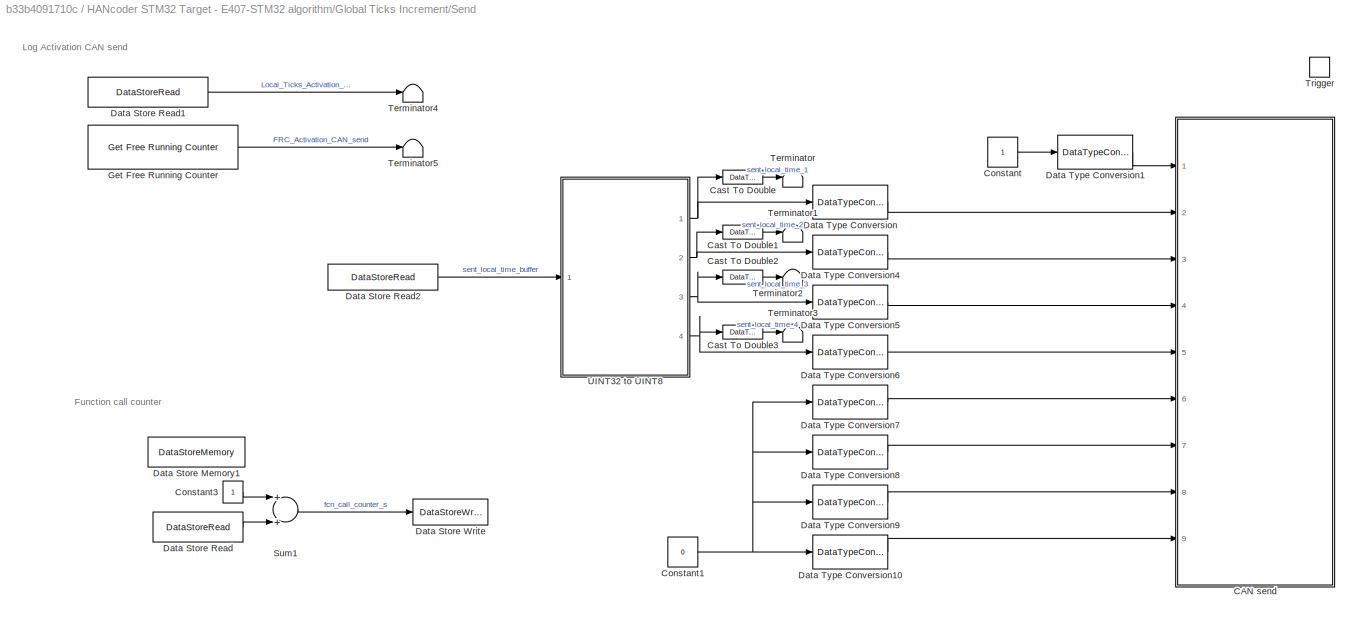
BLOCK [SubSystem] HANcoder STM32 Target - E407-STM32 algorithm/Global Ticks Increment/Send
  Ports = [0, 0, 0, 1]
  RequestExecContextInheritance = off
BLOCK [SubSystem] HANcoder STM32 Target - E407-STM32 algorithm/Global Ticks Increment/Send/CAN send
  AncestorBlock = HANcoder_STM32_Target/STM32-E407/CAN/CAN/CAN send
  MoveFcn = drawLogos
  Ports = [9]
  RequestExecContextInheritance = off
  Tag = HANcoder_TARGET_STM32_E407
  UserDataPersistent = on
BLOCK [Inport] HANcoder STM32 Target - E407-STM32 algorithm/Global Ticks Increment/Send/CAN send/In1
  IconDisplay = Port number
BLOCK [Inport] HANcoder STM32 Target - E407-STM32 algorithm/Global Ticks Increment/Send/CAN send/In2
  IconDisplay = Port number
  Port = 2
BLOCK [Inport] HANcoder STM32 Target - E407-STM32 algorithm/Global Ticks Increment/Send/CAN send/In3
  IconDisplay = Port number
  Port = 3
BLOCK [Inport] HANcoder STM32 Target - E407-STM32 algorithm/Global Ticks Increment/Send/CAN send/In4
  IconDisplay = Port number
  Port = 4
BLOCK [Inport] HANcoder STM32 Target - E407-STM32 algorithm/Global Ticks Increment/Send/CAN send/In5
  IconDisplay = Port number
  Port = 5
BLOCK [Inport] HANcoder STM32 Target - E407-STM32 algorithm/Global Ticks Increment/Send/CAN send/In6
  IconDisplay = Port number
  Port = 6
BLOCK [Inport] HANcoder STM32 Target - E407-STM32 algorithm/Global Ticks Increment/Send/CAN send/In7
  IconDisplay = Port number
  Port = 7
BLOCK [Inport] HANcoder STM32 Target - E407-STM32 algorithm/Global Ticks Increment/Send/CAN send/In8
  IconDisplay = Port number
  Port = 8
BLOCK [Inport] HANcoder STM32 Target - E407-STM32 algorithm/Global Ticks Increment/Send/CAN send/In9
  IconDisplay = Port number
  Port = 9
BLOCK [M-S-Function] HANcoder STM32 Target - E407-STM32 algorithm/Global Ticks Increment/Send/CAN send/S-Function
  FunctionName = sfcn_can_send
  Parameters = tsamp, canBus, frameType, inputNumber, dataType, byteOrder
  Ports = [9]
BLOCK [DataTypeConversion] HANcoder STM32 Target - E407-STM32 algorithm/Global Ticks Increment/Send/Cast To Double
  OutDataTypeStr = double
  RndMeth = Floor
  SaturateOnIntegerOverflow = off
BLOCK [DataTypeConversion] HANcoder STM32 Target - E407-STM32 algorithm/Global Ticks Increment/Send/Cast To Double1
  OutDataTypeStr = double
  RndMeth = Floor
  SaturateOnIntegerOverflow = off
BLOCK [DataTypeConversion] HANcoder STM32 Target - E407-STM32 algorithm/Global Ticks Increment/Send/Cast To Double2
  OutDataTypeStr = double
  RndMeth = Floor
  SaturateOnIntegerOverflow = off
BLOCK [DataTypeConversion] HANcoder STM32 Target - E407-STM32 algorithm/Global Ticks Increment/Send/Cast To Double3
  OutDataTypeStr = double
  RndMeth = Floor
  SaturateOnIntegerOverflow = off
BLOCK [Constant] HANcoder STM32 Target - E407-STM32 algorithm/Global Ticks Increment/Send/Constant
BLOCK [Constant] HANcoder STM32 Target - E407-STM32 algorithm/Global Ticks Increment/Send/Constant1
  Value = 0
BLOCK [Constant] HANcoder STM32 Target - E407-STM32 algorithm/Global Ticks Increment/Send/Constant3
  OutDataTypeStr = uint32
BLOCK [DataStoreMemory] HANcoder STM32 Target - E407-STM32 algorithm/Global Ticks Increment/Send/Data Store Memory1
  DataStoreName = fcn_call_counter
  OutDataTypeStr = uint32
  ReadBeforeWriteMsg = warning
  ShowAdditionalParam = off
  WriteAfterReadMsg = warning
  WriteAfterWriteMsg = warning
BLOCK [DataStoreRead] HANcoder STM32 Target - E407-STM32 algorithm/Global Ticks Increment/Send/Data Store Read
  DataStoreName = fcn_call_counter
  Ports = [0, 1]
BLOCK [DataStoreRead] HANcoder STM32 Target - E407-STM32 algorithm/Global Ticks Increment/Send/Data Store Read1
  DataStoreName = local_ticks_mem_IRQ
  Ports = [0, 1]
BLOCK [DataStoreRead] HANcoder STM32 Target - E407-STM32 algorithm/Global Ticks Increment/Send/Data Store Read2
  DataStoreName = message_buffer
  Ports = [0, 1]
BLOCK [DataStoreWrite] HANcoder STM32 Target - E407-STM32 algorithm/Global Ticks Increment/Send/Data Store Write
  DataStoreName = fcn_call_counter
  Ports = [1]
BLOCK [DataTypeConversion] HANcoder STM32 Target - E407-STM32 algorithm/Global Ticks Increment/Send/Data Type Conversion
  OutDataTypeStr = uint8
  RndMeth = Floor
  SaturateOnIntegerOverflow = off
BLOCK [DataTypeConversion] HANcoder STM32 Target - E407-STM32 algorithm/Global Ticks Increment/Send/Data Type Conversion1
  OutDataTypeStr = uint32
  RndMeth = Floor
  SaturateOnIntegerOverflow = off
BLOCK [DataTypeConversion] HANcoder STM32 Target - E407-STM32 algorithm/Global Ticks Increment/Send/Data Type Conversion10
  OutDataTypeStr = uint8
  RndMeth = Floor
  SaturateOnIntegerOverflow = off
BLOCK [DataTypeConversion] HANcoder STM32 Target - E407-STM32 algorithm/Global Ticks Increment/Send/Data Type Conversion4
  OutDataTypeStr = uint8
  RndMeth = Floor
  SaturateOnIntegerOverflow = off
BLOCK [DataTypeConversion] HANcoder STM32 Target - E407-STM32 algorithm/Global Ticks Increment/Send/Data Type Conversion5
  OutDataTypeStr = uint8
  RndMeth = Floor
  SaturateOnIntegerOverflow = off
BLOCK [DataTypeConversion] HANcoder STM32 Target - E407-STM32 algorithm/Global Ticks Increment/Send/Data Type Conversion6
  OutDataTypeStr = uint8
  RndMeth = Floor
  SaturateOnIntegerOverflow = off
BLOCK [DataTypeConversion] HANcoder STM32 Target - E407-STM32 algorithm/Global Ticks Increment/Send/Data Type Conversion7
  OutDataTypeStr = uint8
  RndMeth = Floor
  SaturateOnIntegerOverflow = off
BLOCK [DataTypeConversion] HANcoder STM32 Target - E407-STM32 algorithm/Global Ticks Increment/Send/Data Type Conversion8
  OutDataTypeStr = uint8
  RndMeth = Floor
  SaturateOnIntegerOverflow = off
BLOCK [DataTypeConversion] HANcoder STM32 Target - E407-STM32 algorithm/Global Ticks Increment/Send/Data Type Conversion9
  OutDataTypeStr = uint8
  RndMeth = Floor
  SaturateOnIntegerOverflow = off
BLOCK [Reference] HANcoder STM32 Target - E407-STM32 algorithm/Global Ticks Increment/Send/Get Free Running Counter  REF=HANcoder_STM32_Target/STM32-E407/Timer Outputs/Get Free Running Counter
  Ports = [0, 1]
  SourceBlock = HANcoder_STM32_Target/STM32-E407/Timer Outputs/Get Free Running Counter
  SourceProductName = HANcoder STM32 Target
  SourceType = Get Free Running Counter
  Tag = HANcoder_TARGET_STM32_E407
  UserDataPersistent = on
BLOCK [Sum] HANcoder STM32 Target - E407-STM32 algorithm/Global Ticks Increment/Send/Sum1
  InputSameDT = off
  OutDataTypeStr = Inherit: Inherit via internal rule
  Ports = [2, 1]
  SaturateOnIntegerOverflow = off
BLOCK [Terminator] HANcoder STM32 Target - E407-STM32 algorithm/Global Ticks Increment/Send/Terminator
BLOCK [Terminator] HANcoder STM32 Target - E407-STM32 algorithm/Global Ticks Increment/Send/Terminator1
BLOCK [Terminator] HANcoder STM32 Target - E407-STM32 algorithm/Global Ticks Increment/Send/Terminator2
BLOCK [Terminator] HANcoder STM32 Target - E407-STM32 algorithm/Global Ticks Increment/Send/Terminator3
BLOCK [Terminator] HANcoder STM32 Target - E407-STM32 algorithm/Global Ticks Increment/Send/Terminator4
BLOCK [Terminator] HANcoder STM32 Target - E407-STM32 algorithm/Global Ticks Increment/Send/Terminator5
BLOCK [TriggerPort] HANcoder STM32 Target - E407-STM32 algorithm/Global Ticks Increment/Send/Trigger
  PortDimensions = 1
  Ports = []
  StatesWhenEnabling = held
  TriggerType = function-call
  VariantControl = Variant
BLOCK [SubSystem] HANcoder STM32 Target - E407-STM32 algorithm/Global Ticks Increment/Send/UINT32 to UINT8
  Ports = [1, 4]
  RequestExecContextInheritance = off
BLOCK [DataTypeConversion] HANcoder STM32 Target - E407-STM32 algorithm/Global Ticks Increment/Send/UINT32 to UINT8/Cast
  OutDataTypeStr = uint8
  RndMeth = Floor
  SaturateOnIntegerOverflow = off
BLOCK [DataTypeConversion] HANcoder STM32 Target - E407-STM32 algorithm/Global Ticks Increment/Send/UINT32 to UINT8/Cast1
  OutDataTypeStr = uint8
  RndMeth = Floor
  SaturateOnIntegerOverflow = off
BLOCK [DataTypeConversion] HANcoder STM32 Target - E407-STM32 algorithm/Global Ticks Increment/Send/UINT32 to UINT8/Cast2
  OutDataTypeStr = uint8
  RndMeth = Floor
  SaturateOnIntegerOverflow = off
BLOCK [DataTypeConversion] HANcoder STM32 Target - E407-STM32 algorithm/Global Ticks Increment/Send/UINT32 to UINT8/Cast3
  OutDataTypeStr = uint8
  RndMeth = Floor
  SaturateOnIntegerOverflow = off
BLOCK [Constant] HANcoder STM32 Target - E407-STM32 algorithm/Global Ticks Increment/Send/UINT32 to UINT8/Constant
  Value = 2
BLOCK [Constant] HANcoder STM32 Target - E407-STM32 algorithm/Global Ticks Increment/Send/UINT32 to UINT8/Constant1
  Value = 0
BLOCK [Constant] HANcoder STM32 Target - E407-STM32 algorithm/Global Ticks Increment/Send/UINT32 to UINT8/Constant2
  Value = 8
BLOCK [Constant] HANcoder STM32 Target - E407-STM32 algorithm/Global Ticks Increment/Send/UINT32 to UINT8/Constant3
  Value = 16
BLOCK [Constant] HANcoder STM32 Target - E407-STM32 algorithm/Global Ticks Increment/Send/UINT32 to UINT8/Constant4
  Value = 24
BLOCK [Product] HANcoder STM32 Target - E407-STM32 algorithm/Global Ticks Increment/Send/UINT32 to UINT8/Divide
  InputSameDT = off
  Inputs = */
  OutDataTypeStr = Inherit: Inherit via internal rule
  Ports = [2, 1]
  RndMeth = Floor
  SaturateOnIntegerOverflow = off
BLOCK [Product] HANcoder STM32 Target - E407-STM32 algorithm/Global Ticks Increment/Send/UINT32 to UINT8/Divide1
  InputSameDT = off
  Inputs = */
  OutDataTypeStr = Inherit: Inherit via internal rule
  Ports = [2, 1]
  RndMeth = Floor
  SaturateOnIntegerOverflow = off
BLOCK [Product] HANcoder STM32 Target - E407-STM32 algorithm/Global Ticks Increment/Send/UINT32 to UINT8/Divide2
  InputSameDT = off
  Inputs = */
  OutDataTypeStr = Inherit: Inherit via internal rule
  Ports = [2, 1]
  RndMeth = Floor
  SaturateOnIntegerOverflow = off
BLOCK [Product] HANcoder STM32 Target - E407-STM32 algorithm/Global Ticks Increment/Send/UINT32 to UINT8/Divide3
  InputSameDT = off
  Inputs = */
  OutDataTypeStr = Inherit: Inherit via internal rule
  Ports = [2, 1]
  RndMeth = Floor
  SaturateOnIntegerOverflow = off
BLOCK [Inport] HANcoder STM32 Target - E407-STM32 algorithm/Global Ticks Increment/Send/UINT32 to UINT8/In1
  IconDisplay = Port number
BLOCK [Product] HANcoder STM32 Target - E407-STM32 algorithm/Global Ticks Increment/Send/UINT32 to UINT8/Multiply
  InputSameDT = off
  OutDataTypeStr = Inherit: Inherit via internal rule
  Ports = [2, 1]
  RndMeth = Floor
  SaturateOnIntegerOverflow = off
BLOCK [Product] HANcoder STM32 Target - E407-STM32 algorithm/Global Ticks Increment/Send/UINT32 to UINT8/Multiply1
  InputSameDT = off
  OutDataTypeStr = Inherit: Inherit via internal rule
  Ports = [2, 1]
  RndMeth = Floor
  SaturateOnIntegerOverflow = off
BLOCK [Product] HANcoder STM32 Target - E407-STM32 algorithm/Global Ticks Increment/Send/UINT32 to UINT8/Multiply2
  InputSameDT = off
  OutDataTypeStr = Inherit: Inherit via internal rule
  Ports = [2, 1]
  RndMeth = Floor
  SaturateOnIntegerOverflow = off
BLOCK [Outport] HANcoder STM32 Target - E407-STM32 algorithm/Global Ticks Increment/Send/UINT32 to UINT8/Out1
  IconDisplay = Port number
BLOCK [Outport] HANcoder STM32 Target - E407-STM32 algorithm/Global Ticks Increment/Send/UINT32 to UINT8/Out2
  IconDisplay = Port number
  Port = 2
BLOCK [Outport] HANcoder STM32 Target - E407-STM32 algorithm/Global Ticks Increment/Send/UINT32 to UINT8/Out3
  IconDisplay = Port number
  Port = 3
BLOCK [Outport] HANcoder STM32 Target - E407-STM32 algorithm/Global Ticks Increment/Send/UINT32 to UINT8/Out4
  IconDisplay = Port number
  Port = 4
BLOCK [Math] HANcoder STM32 Target - E407-STM32 algorithm/Global Ticks Increment/Send/UINT32 to UINT8/Power
  Operator = pow
  Ports = [2, 1]
BLOCK [Math] HANcoder STM32 Target - E407-STM32 algorithm/Global Ticks Increment/Send/UINT32 to UINT8/Power1
  Operator = pow
  Ports = [2, 1]
BLOCK [Math] HANcoder STM32 Target - E407-STM32 algorithm/Global Ticks Increment/Send/UINT32 to UINT8/Power2
  Operator = pow
  Ports = [2, 1]
BLOCK [Math] HANcoder STM32 Target - E407-STM32 algorithm/Global Ticks Increment/Send/UINT32 to UINT8/Power3
  Operator = pow
  Ports = [2, 1]
BLOCK [Sum] HANcoder STM32 Target - E407-STM32 algorithm/Global Ticks Increment/Send/UINT32 to UINT8/Sum
  IconShape = round
  InputSameDT = off
  Inputs = +-|
  OutDataTypeStr = Inherit: Inherit via internal rule
  Ports = [2, 1]
  SaturateOnIntegerOverflow = off
BLOCK [Sum] HANcoder STM32 Target - E407-STM32 algorithm/Global Ticks Increment/Send/UINT32 to UINT8/Sum1
  IconShape = round
  InputSameDT = off
  Inputs = +-|
  OutDataTypeStr = Inherit: Inherit via internal rule
  Ports = [2, 1]
  SaturateOnIntegerOverflow = off
BLOCK [Sum] HANcoder STM32 Target - E407-STM32 algorithm/Global Ticks Increment/Send/UINT32 to UINT8/Sum2
  IconShape = round
  InputSameDT = off
  Inputs = +-|
  OutDataTypeStr = Inherit: Inherit via internal rule
  Ports = [2, 1]
  SaturateOnIntegerOverflow = off
BLOCK [Terminator] HANcoder STM32 Target - E407-STM32 algorithm/Global Ticks Increment/Terminator
BLOCK [SubSystem] HANcoder STM32 Target - E407-STM32 algorithm/Inputs
  Ports = [0, 1]
  RequestExecContextInheritance = off
BLOCK [Outport] HANcoder STM32 Target - E407-STM32 algorithm/Inputs/Button
  IconDisplay = Port number
BLOCK [Reference] HANcoder STM32 Target - E407-STM32 algorithm/Inputs/Digital Input  REF=HANcoder_STM32_Target/STM32-E407/Digital Inputs/Digital Input
  Ports = [0, 1]
  SourceBlock = HANcoder_STM32_Target/STM32-E407/Digital Inputs/Digital Input
  SourceProductName = HANcoder STM32 Target
  SourceType = Digital Input
  Tag = HANcoder_TARGET_STM32_E407
  UserDataPersistent = on
BLOCK [SubSystem] HANcoder STM32 Target - E407-STM32 algorithm/Operation Mode
  Ports = [1, 1]
  RequestExecContextInheritance = off
BLOCK [Inport] HANcoder STM32 Target - E407-STM32 algorithm/Operation Mode/Button_State
  IconDisplay = Port number
BLOCK [Outport] HANcoder STM32 Target - E407-STM32 algorithm/Operation Mode/Clock_State
  IconDisplay = Port number
BLOCK [Constant] HANcoder STM32 Target - E407-STM32 algorithm/Operation Mode/Constant
  OutDataTypeStr = boolean
BLOCK [SubSystem] HANcoder STM32 Target - E407-STM32 algorithm/Operation Mode/Flip Flop T
  Ports = [2, 1]
  RequestExecContextInheritance = off
BLOCK [Inport] HANcoder STM32 Target - E407-STM32 algorithm/Operation Mode/Flip Flop T/Clk
  IconDisplay = Port number
  OutDataTypeStr = boolean
  Port = 2
BLOCK [Reference] HANcoder STM32 Target - E407-STM32 algorithm/Operation Mode/Flip Flop T/J-K Flip-Flop  REF=simulink_extras/Flip Flops/J-K
Flip-Flop
  Ports = [3, 2]
  SourceBlock = simulink_extras/Flip Flops/J-K\nFlip-Flop
  SourceProductBaseCode = SL
  SourceProductName = Simulink
  SourceType = JKFlipFlop
BLOCK [Outport] HANcoder STM32 Target - E407-STM32 algorithm/Operation Mode/Flip Flop T/Q
  IconDisplay = Port number
  OutDataTypeStr = boolean
BLOCK [Inport] HANcoder STM32 Target - E407-STM32 algorithm/Operation Mode/Flip Flop T/T
  IconDisplay = Port number
  OutDataTypeStr = boolean
BLOCK [Terminator] HANcoder STM32 Target - E407-STM32 algorithm/Operation Mode/Flip Flop T/Terminator
BLOCK [SubSystem] HANcoder STM32 Target - E407-STM32 algorithm/Outputs
  Ports = []
  RequestExecContextInheritance = off
BLOCK [DataTypeConversion] HANcoder STM32 Target - E407-STM32 algorithm/Outputs/Cast To Double
  OutDataTypeStr = double
  RndMeth = Floor
  SaturateOnIntegerOverflow = off
BLOCK [Constant] HANcoder STM32 Target - E407-STM32 algorithm/Outputs/Constant
  Value = LED_ticks_toggle
BLOCK [DataStoreMemory] HANcoder STM32 Target - E407-STM32 algorithm/Outputs/Data Store Memory
  DataStoreName = LED_local_ticks
  ReadBeforeWriteMsg = warning
  ShowAdditionalParam = off
  WriteAfterReadMsg = warning
  WriteAfterWriteMsg = warning
BLOCK [DataStoreMemory] HANcoder STM32 Target - E407-STM32 algorithm/Outputs/Data Store Memory1
  DataStoreName = LED_State
  OutDataTypeStr = boolean
  ReadBeforeWriteMsg = warning
  ShowAdditionalParam = off
  WriteAfterReadMsg = warning
  WriteAfterWriteMsg = warning
BLOCK [DataStoreRead] HANcoder STM32 Target - E407-STM32 algorithm/Outputs/Data Store Read
  DataStoreName = local_ticks_mem_IRQ
  Ports = [0, 1]
BLOCK [DataStoreRead] HANcoder STM32 Target - E407-STM32 algorithm/Outputs/Data Store Read1
  DataStoreName = LED_local_ticks
  Ports = [0, 1]
BLOCK [DataStoreRead] HANcoder STM32 Target - E407-STM32 algorithm/Outputs/Data Store Read2
  DataStoreName = LED_State
  Ports = [0, 1]
BLOCK [DataStoreRead] HANcoder STM32 Target - E407-STM32 algorithm/Outputs/Data Store Read3
  DataStoreName = LED_local_ticks
  Ports = [0, 1]
BLOCK [DataStoreRead] HANcoder STM32 Target - E407-STM32 algorithm/Outputs/Data Store Read4
  DataStoreName = LED_State
  Ports = [0, 1]
BLOCK [DataStoreRead] HANcoder STM32 Target - E407-STM32 algorithm/Outputs/Data Store Read5
  DataStoreName = LED_State
  Ports = [0, 1]
BLOCK [DataStoreWrite] HANcoder STM32 Target - E407-STM32 algorithm/Outputs/Data Store Write
  DataStoreName = LED_local_ticks
  Ports = [1]
BLOCK [DataStoreWrite] HANcoder STM32 Target - E407-STM32 algorithm/Outputs/Data Store Write1
  DataStoreName = LED_State
  Ports = [1]
BLOCK [Reference] HANcoder STM32 Target - E407-STM32 algorithm/Outputs/Digital Output  REF=HANcoder_STM32_Target/STM32-E407/Digital Outputs/Digital Output
  Ports = [1]
  SourceBlock = HANcoder_STM32_Target/STM32-E407/Digital Outputs/Digital Output
  SourceProductName = HANcoder STM32 Target
  SourceType = Digital Output
  Tag = HANcoder_TARGET_STM32_E407
  UserDataPersistent = on
BLOCK [RelationalOperator] HANcoder STM32 Target - E407-STM32 algorithm/Outputs/GreaterThan
  InputSameDT = off
  Operator = >
  OutDataTypeStr = boolean
  Ports = [2, 1]
  RndMeth = Simplest
BLOCK [Logic] HANcoder STM32 Target - E407-STM32 algorithm/Outputs/NOT
  AllPortsSameDT = off
  IconShape = distinctive
  Operator = NOT
  OutDataTypeStr = boolean
  Ports = [1, 1]
BLOCK [Sum] HANcoder STM32 Target - E407-STM32 algorithm/Outputs/Sum
  IconShape = round
  InputSameDT = off
  Inputs = |++
  OutDataTypeStr = Inherit: Inherit via internal rule
  Ports = [2, 1]
  SaturateOnIntegerOverflow = off
BLOCK [Switch] HANcoder STM32 Target - E407-STM32 algorithm/Outputs/Switch
  Criteria = u2 > Threshold
  InputSameDT = off
  SaturateOnIntegerOverflow = off
BLOCK [Switch] HANcoder STM32 Target - E407-STM32 algorithm/Outputs/Switch1
  Criteria = u2 > Threshold
  InputSameDT = off
  SaturateOnIntegerOverflow = off
BLOCK [SubSystem] HANcoder STM32 Target - E407-STM32 algorithm/System information
  Ports = []
  RequestExecContextInheritance = off
BLOCK [Reference] HANcoder STM32 Target - E407-STM32 algorithm/System information/Get CPU load  REF=HANcoder_STM32_Target/STM32-E407/System Management/Get CPU load
  Ports = [0, 1]
  SourceBlock = HANcoder_STM32_Target/STM32-E407/System Management/Get CPU load
  SourceProductName = HANcoder STM32 Target
  SourceType = Get CPU load
  Tag = HANcoder_TARGET_STM32_E407
  UserDataPersistent = on
BLOCK [Reference] HANcoder STM32 Target - E407-STM32 algorithm/System information/Get free Heap  REF=HANcoder_STM32_Target/STM32-E407/System Management/Get free Heap
  Ports = [0, 1]
  SourceBlock = HANcoder_STM32_Target/STM32-E407/System Management/Get free Heap
  SourceProductName = HANcoder STM32 Target
  SourceType = Get free Heap
  Tag = HANcoder_TARGET_STM32_E407
  UserDataPersistent = on
BLOCK [Reference] HANcoder STM32 Target - E407-STM32 algorithm/System information/Get free Stack  REF=HANcoder_STM32_Target/STM32-E407/System Management/Get free Stack
  Ports = [0, 1]
  SourceBlock = HANcoder_STM32_Target/STM32-E407/System Management/Get free Stack
  SourceProductName = HANcoder STM32 Target
  SourceType = Get free Stacl
  Tag = HANcoder_TARGET_STM32_E407
  UserDataPersistent = on
BLOCK [Terminator] HANcoder STM32 Target - E407-STM32 algorithm/System information/Terminator
BLOCK [Terminator] HANcoder STM32 Target - E407-STM32 algorithm/System information/Terminator1
BLOCK [Terminator] HANcoder STM32 Target - E407-STM32 algorithm/System information/Terminator2
BLOCK [Reference] HANcoder STM32 Target - E407-STM32 algorithm/XCP on CAN config  REF=HANcoder_STM32_Target/STM32-E407/System Config/XCP on CAN config
  Ports = []
  SourceBlock = HANcoder_STM32_Target/STM32-E407/System Config/XCP on CAN config
  SourceProductName = HANcoder STM32 Target
  SourceType = XCP on CAN config
  Tag = HANcoder_TARGET_STM32_E407
  UserDataPersistent = on
BLOCK [Reference] HANcoder STM32 Target - E407-STM32 algorithm/XCP on USB config  REF=HANcoder_STM32_Target/STM32-E407/System Config/XCP on USB config
  Ports = []
  SourceBlock = HANcoder_STM32_Target/STM32-E407/System Config/XCP on USB config
  SourceProductName = HANcoder STM32 Target
  SourceType = XCP on USB config
  Tag = HANcoder_TARGET_STM32_E407
  UserDataPersistent = on
BLOCK [SubSystem] License
  MoveFcn = HANcoderChecks('MoveLicenseBlock');
  NameChangeFcn = HANcoderChecks('NameChangeLicenseBlock');
  OpenFcn = winopen('License.pdf')
  Ports = []
  RequestExecContextInheritance = off
  ShowPortLabels = none
ANNOTATION (root): Read more on HANcoder
ANNOTATION HANcoder STM32 Target - E407-STM32 algorithm: Global Variables
ANNOTATION HANcoder STM32 Target - E407-STM32 algorithm: Template model
ANNOTATION HANcoder STM32 Target - E407-STM32 algorithm/Algorithm: Here the algorithm can be placed. No hardware dependent blocks should be used here.
ANNOTATION HANcoder STM32 Target - E407-STM32 algorithm/Algorithm: Switch LED frequency when button is pressed
ANNOTATION HANcoder STM32 Target - E407-STM32 algorithm/Algorithm: The button or the HANtuneOverride parameter switches between the two frequencies.
ANNOTATION HANcoder STM32 Target - E407-STM32 algorithm/Global Ticks Increment/CAN Management: Activate idle time delay if ID Free or Master
ANNOTATION HANcoder STM32 Target - E407-STM32 algorithm/Global Ticks Increment/CAN Management: Board ID Update
ANNOTATION HANcoder STM32 Target - E407-STM32 algorithm/Global Ticks Increment/CAN Management: Local variable Free -> 0 Master -> 1 Slave -> 2
ANNOTATION HANcoder STM32 Target - E407-STM32 algorithm/Global Ticks Increment/CAN Management: if ID -> Free if Receive CAN message ID <- Slave elsif x2 idle time delay ID <- Master
ANNOTATION HANcoder STM32 Target - E407-STM32 algorithm/Global Ticks Increment/CAN Management: if ID -> Master && Counter_Reset Send Local Time
ANNOTATION HANcoder STM32 Target - E407-STM32 algorithm/Global Ticks Increment/CAN Management/CAN Recieve: Local Time Update
ANNOTATION HANcoder STM32 Target - E407-STM32 algorithm/Global Ticks Increment/CAN Management/CAN Recieve: New message counter
ANNOTATION HANcoder STM32 Target - E407-STM32 algorithm/Global Ticks Increment/CAN Management/CAN Recieve/UINT8 to UINT32: Each uint8 is multiplied by the power of 2 corresponding to its position in the uint32 output
ANNOTATION HANcoder STM32 Target - E407-STM32 algorithm/Global Ticks Increment/CAN Management/CAN Recieve/UINT8 to UINT32: Powers of 2
ANNOTATION HANcoder STM32 Target - E407-STM32 algorithm/Global Ticks Increment/CAN Management/Check send sync message: Activate Master sync message
ANNOTATION HANcoder STM32 Target - E407-STM32 algorithm/Global Ticks Increment/CAN Management/Check send sync message: First message as a Master
ANNOTATION HANcoder STM32 Target - E407-STM32 algorithm/Global Ticks Increment/CAN Management/Check send sync message: Send sync message if ID Master
ANNOTATION HANcoder STM32 Target - E407-STM32 algorithm/Global Ticks Increment/CAN Management/Check send sync message: Update sending message
ANNOTATION HANcoder STM32 Target - E407-STM32 algorithm/Global Ticks Increment/CAN Management/Idle Time Delay: Idle Time delay
ANNOTATION HANcoder STM32 Target - E407-STM32 algorithm/Global Ticks Increment/CAN Management/Idle Time Delay: Increase counter when Delay active
ANNOTATION HANcoder STM32 Target - E407-STM32 algorithm/Global Ticks Increment/CAN Management/Idle Time Delay: Local Variable
ANNOTATION HANcoder STM32 Target - E407-STM32 algorithm/Global Ticks Increment/CAN Management/Idle Time Delay: Log of Local_Ticks at the beginning of the delay
ANNOTATION HANcoder STM32 Target - E407-STM32 algorithm/Global Ticks Increment/CAN Management/Idle Time Delay: Reset condition
ANNOTATION HANcoder STM32 Target - E407-STM32 algorithm/Global Ticks Increment/CAN Management/Idle Time Delay: Time Threshold (.mat)
ANNOTATION HANcoder STM32 Target - E407-STM32 algorithm/Global Ticks Increment/CAN Management/Update Board ID: Check board is Free
ANNOTATION HANcoder STM32 Target - E407-STM32 algorithm/Global Ticks Increment/CAN Management/Update Board ID: Count every time an Idle Time Delay Reset happens while ID is Free
ANNOTATION HANcoder STM32 Target - E407-STM32 algorithm/Global Ticks Increment/CAN Management/Update Board ID: If ID -> Free && 2x Resets ID -> Master
ANNOTATION HANcoder STM32 Target - E407-STM32 algorithm/Global Ticks Increment/CAN Management/Update Board ID: If ID ->Free && New_Message ID -> Slave
ANNOTATION HANcoder STM32 Target - E407-STM32 algorithm/Global Ticks Increment/CAN Management/Update Board ID: Local Variable
ANNOTATION HANcoder STM32 Target - E407-STM32 algorithm/Global Ticks Increment/Function-Call Subsystem: Counter Reset
ANNOTATION HANcoder STM32 Target - E407-STM32 algorithm/Global Ticks Increment/Function-Call Subsystem: Tick Counter Increment
ANNOTATION HANcoder STM32 Target - E407-STM32 algorithm/Global Ticks Increment/Send: Function call counter
ANNOTATION HANcoder STM32 Target - E407-STM32 algorithm/Global Ticks Increment/Send: Log Activation CAN send
ANNOTATION HANcoder STM32 Target - E407-STM32 algorithm/Global Ticks Increment/Send/UINT32 to UINT8: Powers of 2
ANNOTATION HANcoder STM32 Target - E407-STM32 algorithm/Inputs: The inputs and outputs are kept in a separate subsystem, this way the algorithm can easily be transferred to different hardware
ANNOTATION HANcoder STM32 Target - E407-STM32 algorithm/Operation Mode: Operation Mode There are two modes of operation: ( 0 ) Idle (Clock Off) ( 1 ) Counting (Clock On) In order to switch from one to the other the Olimexino button must be pressed once. In this subsystem, with every negative edge of the Button State, the Operation Mode will change from one to the other.
ANNOTATION HANcoder STM32 Target - E407-STM32 algorithm/System information: These blocks check the free memory: stack and heap and the CPU load, this way you can see whether your software demands too much of the microcontroller
LINE HANcoder STM32 Target - E407-STM32 algorithm/Algorithm/10Hz Counter Limiter:1 -> HANcoder STM32 Target - E407-STM32 algorithm/Algorithm/Switch:1
LINE HANcoder STM32 Target - E407-STM32 algorithm/Algorithm/5Hz Counter Limited:1 -> HANcoder STM32 Target - E407-STM32 algorithm/Algorithm/Switch:3
LINE HANcoder STM32 Target - E407-STM32 algorithm/Algorithm/Button:1 -> HANcoder STM32 Target - E407-STM32 algorithm/Algorithm/Logical Operator:2
LINE HANcoder STM32 Target - E407-STM32 algorithm/Algorithm/Constant:1 -> HANcoder STM32 Target - E407-STM32 algorithm/Algorithm/Logical Operator:1
LINE HANcoder STM32 Target - E407-STM32 algorithm/Algorithm/Data Type Conversion:1 -> HANcoder STM32 Target - E407-STM32 algorithm/Algorithm/Terminator:1
LINE HANcoder STM32 Target - E407-STM32 algorithm/Algorithm/Logical Operator:1 -> HANcoder STM32 Target - E407-STM32 algorithm/Algorithm/Switch:2
LINE HANcoder STM32 Target - E407-STM32 algorithm/Algorithm/Switch:1 -> HANcoder STM32 Target - E407-STM32 algorithm/Algorithm/Data Type Conversion:1
LINE HANcoder STM32 Target - E407-STM32 algorithm/Global Ticks Increment/CAN Management/CAN Recieve/CAN receive:1 -> HANcoder STM32 Target - E407-STM32 algorithm/Global Ticks Increment/CAN Management/CAN Recieve/Cast:1
NET HANcoder STM32 Target - E407-STM32 algorithm/Global Ticks Increment/CAN Management/CAN Recieve/CAN receive:2 -> HANcoder STM32 Target - E407-STM32 algorithm/Global Ticks Increment/CAN Management/CAN Recieve/Data Type Conversion3:1, HANcoder STM32 Target - E407-STM32 algorithm/Global Ticks Increment/CAN Management/CAN Recieve/UINT8 to UINT32:1
NET HANcoder STM32 Target - E407-STM32 algorithm/Global Ticks Increment/CAN Management/CAN Recieve/CAN receive:3 -> HANcoder STM32 Target - E407-STM32 algorithm/Global Ticks Increment/CAN Management/CAN Recieve/Data Type Conversion1:1, HANcoder STM32 Target - E407-STM32 algorithm/Global Ticks Increment/CAN Management/CAN Recieve/UINT8 to UINT32:2
NET HANcoder STM32 Target - E407-STM32 algorithm/Global Ticks Increment/CAN Management/CAN Recieve/CAN receive:4 -> HANcoder STM32 Target - E407-STM32 algorithm/Global Ticks Increment/CAN Management/CAN Recieve/Data Type Conversion4:1, HANcoder STM32 Target - E407-STM32 algorithm/Global Ticks Increment/CAN Management/CAN Recieve/UINT8 to UINT32:3
NET HANcoder STM32 Target - E407-STM32 algorithm/Global Ticks Increment/CAN Management/CAN Recieve/CAN receive:5 -> HANcoder STM32 Target - E407-STM32 algorithm/Global Ticks Increment/CAN Management/CAN Recieve/Data Type Conversion5:1, HANcoder STM32 Target - E407-STM32 algorithm/Global Ticks Increment/CAN Management/CAN Recieve/UINT8 to UINT32:4
LINE HANcoder STM32 Target - E407-STM32 algorithm/Global Ticks Increment/CAN Management/CAN Recieve/CAN receive:6 -> HANcoder STM32 Target - E407-STM32 algorithm/Global Ticks Increment/CAN Management/CAN Recieve/Data Type Conversion6:1
LINE HANcoder STM32 Target - E407-STM32 algorithm/Global Ticks Increment/CAN Management/CAN Recieve/CAN receive:7 -> HANcoder STM32 Target - E407-STM32 algorithm/Global Ticks Increment/CAN Management/CAN Recieve/Data Type Conversion7:1
LINE HANcoder STM32 Target - E407-STM32 algorithm/Global Ticks Increment/CAN Management/CAN Recieve/CAN receive:8 -> HANcoder STM32 Target - E407-STM32 algorithm/Global Ticks Increment/CAN Management/CAN Recieve/Data Type Conversion8:1
LINE HANcoder STM32 Target - E407-STM32 algorithm/Global Ticks Increment/CAN Management/CAN Recieve/CAN receive:9 -> HANcoder STM32 Target - E407-STM32 algorithm/Global Ticks Increment/CAN Management/CAN Recieve/Data Type Conversion9:1
NET HANcoder STM32 Target - E407-STM32 algorithm/Global Ticks Increment/CAN Management/CAN Recieve/Cast:1 -> HANcoder STM32 Target - E407-STM32 algorithm/Global Ticks Increment/CAN Management/CAN Recieve/New_Message:1, HANcoder STM32 Target - E407-STM32 algorithm/Global Ticks Increment/CAN Management/CAN Recieve/Switch2:2, HANcoder STM32 Target - E407-STM32 algorithm/Global Ticks Increment/CAN Management/CAN Recieve/Switch:2
LINE HANcoder STM32 Target - E407-STM32 algorithm/Global Ticks Increment/CAN Management/CAN Recieve/Constant1:1 -> HANcoder STM32 Target - E407-STM32 algorithm/Global Ticks Increment/CAN Management/CAN Recieve/CAN receive:1
LINE HANcoder STM32 Target - E407-STM32 algorithm/Global Ticks Increment/CAN Management/CAN Recieve/Constant2:1 -> HANcoder STM32 Target - E407-STM32 algorithm/Global Ticks Increment/CAN Management/CAN Recieve/Sum:2
LINE HANcoder STM32 Target - E407-STM32 algorithm/Global Ticks Increment/CAN Management/CAN Recieve/Data Store Read1:1 -> HANcoder STM32 Target - E407-STM32 algorithm/Global Ticks Increment/CAN Management/CAN Recieve/Switch2:3
LINE HANcoder STM32 Target - E407-STM32 algorithm/Global Ticks Increment/CAN Management/CAN Recieve/Data Store Read2:1 -> HANcoder STM32 Target - E407-STM32 algorithm/Global Ticks Increment/CAN Management/CAN Recieve/Sum:1
NET HANcoder STM32 Target - E407-STM32 algorithm/Global Ticks Increment/CAN Management/CAN Recieve/Data Store Read:1 -> HANcoder STM32 Target - E407-STM32 algorithm/Global Ticks Increment/CAN Management/CAN Recieve/Minus:1, HANcoder STM32 Target - E407-STM32 algorithm/Global Ticks Increment/CAN Management/CAN Recieve/Switch:3
LINE HANcoder STM32 Target - E407-STM32 algorithm/Global Ticks Increment/CAN Management/CAN Recieve/Data Type Conversion1:1 -> HANcoder STM32 Target - E407-STM32 algorithm/Global Ticks Increment/CAN Management/CAN Recieve/Terminator3:1
NET HANcoder STM32 Target - E407-STM32 algorithm/Global Ticks Increment/CAN Management/CAN Recieve/Data Type Conversion2:1 -> HANcoder STM32 Target - E407-STM32 algorithm/Global Ticks Increment/CAN Management/CAN Recieve/Minus:2, HANcoder STM32 Target - E407-STM32 algorithm/Global Ticks Increment/CAN Management/CAN Recieve/Terminator:1
LINE HANcoder STM32 Target - E407-STM32 algorithm/Global Ticks Increment/CAN Management/CAN Recieve/Data Type Conversion3:1 -> HANcoder STM32 Target - E407-STM32 algorithm/Global Ticks Increment/CAN Management/CAN Recieve/Terminator8:1
LINE HANcoder STM32 Target - E407-STM32 algorithm/Global Ticks Increment/CAN Management/CAN Recieve/Data Type Conversion4:1 -> HANcoder STM32 Target - E407-STM32 algorithm/Global Ticks Increment/CAN Management/CAN Recieve/Terminator2:1
LINE HANcoder STM32 Target - E407-STM32 algorithm/Global Ticks Increment/CAN Management/CAN Recieve/Data Type Conversion5:1 -> HANcoder STM32 Target - E407-STM32 algorithm/Global Ticks Increment/CAN Management/CAN Recieve/Terminator1:1
LINE HANcoder STM32 Target - E407-STM32 algorithm/Global Ticks Increment/CAN Management/CAN Recieve/Data Type Conversion6:1 -> HANcoder STM32 Target - E407-STM32 algorithm/Global Ticks Increment/CAN Management/CAN Recieve/Terminator4:1
LINE HANcoder STM32 Target - E407-STM32 algorithm/Global Ticks Increment/CAN Management/CAN Recieve/Data Type Conversion7:1 -> HANcoder STM32 Target - E407-STM32 algorithm/Global Ticks Increment/CAN Management/CAN Recieve/Terminator5:1
LINE HANcoder STM32 Target - E407-STM32 algorithm/Global Ticks Increment/CAN Management/CAN Recieve/Data Type Conversion8:1 -> HANcoder STM32 Target - E407-STM32 algorithm/Global Ticks Increment/CAN Management/CAN Recieve/Terminator6:1
LINE HANcoder STM32 Target - E407-STM32 algorithm/Global Ticks Increment/CAN Management/CAN Recieve/Data Type Conversion9:1 -> HANcoder STM32 Target - E407-STM32 algorithm/Global Ticks Increment/CAN Management/CAN Recieve/Terminator7:1
LINE HANcoder STM32 Target - E407-STM32 algorithm/Global Ticks Increment/CAN Management/CAN Recieve/Minus:1 -> HANcoder STM32 Target - E407-STM32 algorithm/Global Ticks Increment/CAN Management/CAN Recieve/Terminator9:1
LINE HANcoder STM32 Target - E407-STM32 algorithm/Global Ticks Increment/CAN Management/CAN Recieve/Sum:1 -> HANcoder STM32 Target - E407-STM32 algorithm/Global Ticks Increment/CAN Management/CAN Recieve/Switch2:1
LINE HANcoder STM32 Target - E407-STM32 algorithm/Global Ticks Increment/CAN Management/CAN Recieve/Switch2:1 -> HANcoder STM32 Target - E407-STM32 algorithm/Global Ticks Increment/CAN Management/CAN Recieve/Data Store Write1:1
LINE HANcoder STM32 Target - E407-STM32 algorithm/Global Ticks Increment/CAN Management/CAN Recieve/Switch:1 -> HANcoder STM32 Target - E407-STM32 algorithm/Global Ticks Increment/CAN Management/CAN Recieve/Data Store Write:1
LINE HANcoder STM32 Target - E407-STM32 algorithm/Global Ticks Increment/CAN Management/CAN Recieve/UINT8 to UINT32/Cast:1 -> HANcoder STM32 Target - E407-STM32 algorithm/Global Ticks Increment/CAN Management/CAN Recieve/UINT8 to UINT32/Out1:1
LINE HANcoder STM32 Target - E407-STM32 algorithm/Global Ticks Increment/CAN Management/CAN Recieve/UINT8 to UINT32/Constant1:1 -> HANcoder STM32 Target - E407-STM32 algorithm/Global Ticks Increment/CAN Management/CAN Recieve/UINT8 to UINT32/Power:2
LINE HANcoder STM32 Target - E407-STM32 algorithm/Global Ticks Increment/CAN Management/CAN Recieve/UINT8 to UINT32/Constant2:1 -> HANcoder STM32 Target - E407-STM32 algorithm/Global Ticks Increment/CAN Management/CAN Recieve/UINT8 to UINT32/Power1:2
LINE HANcoder STM32 Target - E407-STM32 algorithm/Global Ticks Increment/CAN Management/CAN Recieve/UINT8 to UINT32/Constant3:1 -> HANcoder STM32 Target - E407-STM32 algorithm/Global Ticks Increment/CAN Management/CAN Recieve/UINT8 to UINT32/Power2:2
LINE HANcoder STM32 Target - E407-STM32 algorithm/Global Ticks Increment/CAN Management/CAN Recieve/UINT8 to UINT32/Constant4:1 -> HANcoder STM32 Target - E407-STM32 algorithm/Global Ticks Increment/CAN Management/CAN Recieve/UINT8 to UINT32/Power3:2
NET HANcoder STM32 Target - E407-STM32 algorithm/Global Ticks Increment/CAN Management/CAN Recieve/UINT8 to UINT32/Constant:1 -> HANcoder STM32 Target - E407-STM32 algorithm/Global Ticks Increment/CAN Management/CAN Recieve/UINT8 to UINT32/Power1:1, HANcoder STM32 Target - E407-STM32 algorithm/Global Ticks Increment/CAN Management/CAN Recieve/UINT8 to UINT32/Power2:1, HANcoder STM32 Target - E407-STM32 algorithm/Global Ticks Increment/CAN Management/CAN Recieve/UINT8 to UINT32/Power3:1, HANcoder STM32 Target - E407-STM32 algorithm/Global Ticks Increment/CAN Management/CAN Recieve/UINT8 to UINT32/Power:1
LINE HANcoder STM32 Target - E407-STM32 algorithm/Global Ticks Increment/CAN Management/CAN Recieve/UINT8 to UINT32/In1:1 -> HANcoder STM32 Target - E407-STM32 algorithm/Global Ticks Increment/CAN Management/CAN Recieve/UINT8 to UINT32/Multiply1:1
LINE HANcoder STM32 Target - E407-STM32 algorithm/Global Ticks Increment/CAN Management/CAN Recieve/UINT8 to UINT32/In2:1 -> HANcoder STM32 Target - E407-STM32 algorithm/Global Ticks Increment/CAN Management/CAN Recieve/UINT8 to UINT32/Multiply:1
LINE HANcoder STM32 Target - E407-STM32 algorithm/Global Ticks Increment/CAN Management/CAN Recieve/UINT8 to UINT32/In3:1 -> HANcoder STM32 Target - E407-STM32 algorithm/Global Ticks Increment/CAN Management/CAN Recieve/UINT8 to UINT32/Multiply2:1
LINE HANcoder STM32 Target - E407-STM32 algorithm/Global Ticks Increment/CAN Management/CAN Recieve/UINT8 to UINT32/In4:1 -> HANcoder STM32 Target - E407-STM32 algorithm/Global Ticks Increment/CAN Management/CAN Recieve/UINT8 to UINT32/Multiply3:1
LINE HANcoder STM32 Target - E407-STM32 algorithm/Global Ticks Increment/CAN Management/CAN Recieve/UINT8 to UINT32/Multiply1:1 -> HANcoder STM32 Target - E407-STM32 algorithm/Global Ticks Increment/CAN Management/CAN Recieve/UINT8 to UINT32/Sum:1
LINE HANcoder STM32 Target - E407-STM32 algorithm/Global Ticks Increment/CAN Management/CAN Recieve/UINT8 to UINT32/Multiply2:1 -> HANcoder STM32 Target - E407-STM32 algorithm/Global Ticks Increment/CAN Management/CAN Recieve/UINT8 to UINT32/Sum:3
LINE HANcoder STM32 Target - E407-STM32 algorithm/Global Ticks Increment/CAN Management/CAN Recieve/UINT8 to UINT32/Multiply3:1 -> HANcoder STM32 Target - E407-STM32 algorithm/Global Ticks Increment/CAN Management/CAN Recieve/UINT8 to UINT32/Sum:4
LINE HANcoder STM32 Target - E407-STM32 algorithm/Global Ticks Increment/CAN Management/CAN Recieve/UINT8 to UINT32/Multiply:1 -> HANcoder STM32 Target - E407-STM32 algorithm/Global Ticks Increment/CAN Management/CAN Recieve/UINT8 to UINT32/Sum:2
LINE HANcoder STM32 Target - E407-STM32 algorithm/Global Ticks Increment/CAN Management/CAN Recieve/UINT8 to UINT32/Power1:1 -> HANcoder STM32 Target - E407-STM32 algorithm/Global Ticks Increment/CAN Management/CAN Recieve/UINT8 to UINT32/Multiply:2
LINE HANcoder STM32 Target - E407-STM32 algorithm/Global Ticks Increment/CAN Management/CAN Recieve/UINT8 to UINT32/Power2:1 -> HANcoder STM32 Target - E407-STM32 algorithm/Global Ticks Increment/CAN Management/CAN Recieve/UINT8 to UINT32/Multiply2:2
LINE HANcoder STM32 Target - E407-STM32 algorithm/Global Ticks Increment/CAN Management/CAN Recieve/UINT8 to UINT32/Power3:1 -> HANcoder STM32 Target - E407-STM32 algorithm/Global Ticks Increment/CAN Management/CAN Recieve/UINT8 to UINT32/Multiply3:2
LINE HANcoder STM32 Target - E407-STM32 algorithm/Global Ticks Increment/CAN Management/CAN Recieve/UINT8 to UINT32/Power:1 -> HANcoder STM32 Target - E407-STM32 algorithm/Global Ticks Increment/CAN Management/CAN Recieve/UINT8 to UINT32/Multiply1:2
LINE HANcoder STM32 Target - E407-STM32 algorithm/Global Ticks Increment/CAN Management/CAN Recieve/UINT8 to UINT32/Sum:1 -> HANcoder STM32 Target - E407-STM32 algorithm/Global Ticks Increment/CAN Management/CAN Recieve/UINT8 to UINT32/Cast:1
NET HANcoder STM32 Target - E407-STM32 algorithm/Global Ticks Increment/CAN Management/CAN Recieve/UINT8 to UINT32:1 -> HANcoder STM32 Target - E407-STM32 algorithm/Global Ticks Increment/CAN Management/CAN Recieve/Data Type Conversion2:1, HANcoder STM32 Target - E407-STM32 algorithm/Global Ticks Increment/CAN Management/CAN Recieve/Switch:1
LINE HANcoder STM32 Target - E407-STM32 algorithm/Global Ticks Increment/CAN Management/CAN Recieve:1 -> HANcoder STM32 Target - E407-STM32 algorithm/Global Ticks Increment/CAN Management/Update Board ID:2
LINE HANcoder STM32 Target - E407-STM32 algorithm/Global Ticks Increment/CAN Management/Check send sync message/AND:1 -> HANcoder STM32 Target - E407-STM32 algorithm/Global Ticks Increment/CAN Management/Check send sync message/OR:1
LINE HANcoder STM32 Target - E407-STM32 algorithm/Global Ticks Increment/CAN Management/Check send sync message/Check_Reset_Idle_Time:1 -> HANcoder STM32 Target - E407-STM32 algorithm/Global Ticks Increment/CAN Management/Check send sync message/Function Call:1
LINE HANcoder STM32 Target - E407-STM32 algorithm/Global Ticks Increment/CAN Management/Check send sync message/Constant:1 -> HANcoder STM32 Target - E407-STM32 algorithm/Global Ticks Increment/CAN Management/Check send sync message/Switch:1
LINE HANcoder STM32 Target - E407-STM32 algorithm/Global Ticks Increment/CAN Management/Check send sync message/Data Store Read1:1 -> HANcoder STM32 Target - E407-STM32 algorithm/Global Ticks Increment/CAN Management/Check send sync message/Switch2:3
LINE HANcoder STM32 Target - E407-STM32 algorithm/Global Ticks Increment/CAN Management/Check send sync message/Data Store Read2:1 -> HANcoder STM32 Target - E407-STM32 algorithm/Global Ticks Increment/CAN Management/Check send sync message/Equal1:1
LINE HANcoder STM32 Target - E407-STM32 algorithm/Global Ticks Increment/CAN Management/Check send sync message/Data Store Read3:1 -> HANcoder STM32 Target - E407-STM32 algorithm/Global Ticks Increment/CAN Management/Check send sync message/Equal:1
NET HANcoder STM32 Target - E407-STM32 algorithm/Global Ticks Increment/CAN Management/Check send sync message/Data Store Read4:1 -> HANcoder STM32 Target - E407-STM32 algorithm/Global Ticks Increment/CAN Management/Check send sync message/Equal:2, HANcoder STM32 Target - E407-STM32 algorithm/Global Ticks Increment/CAN Management/Check send sync message/Switch:3
LINE HANcoder STM32 Target - E407-STM32 algorithm/Global Ticks Increment/CAN Management/Check send sync message/Data Store Read:1 -> HANcoder STM32 Target - E407-STM32 algorithm/Global Ticks Increment/CAN Management/Check send sync message/Switch2:1
LINE HANcoder STM32 Target - E407-STM32 algorithm/Global Ticks Increment/CAN Management/Check send sync message/Equal1:1 -> HANcoder STM32 Target - E407-STM32 algorithm/Global Ticks Increment/CAN Management/Check send sync message/AND:1
NET HANcoder STM32 Target - E407-STM32 algorithm/Global Ticks Increment/CAN Management/Check send sync message/Equal:1 -> HANcoder STM32 Target - E407-STM32 algorithm/Global Ticks Increment/CAN Management/Check send sync message/OR:2, HANcoder STM32 Target - E407-STM32 algorithm/Global Ticks Increment/CAN Management/Check send sync message/Switch:2
LINE HANcoder STM32 Target - E407-STM32 algorithm/Global Ticks Increment/CAN Management/Check send sync message/Master:1 -> HANcoder STM32 Target - E407-STM32 algorithm/Global Ticks Increment/CAN Management/Check send sync message/Equal1:2
NET HANcoder STM32 Target - E407-STM32 algorithm/Global Ticks Increment/CAN Management/Check send sync message/OR:1 -> HANcoder STM32 Target - E407-STM32 algorithm/Global Ticks Increment/CAN Management/Check send sync message/Check_Reset_Idle_Time:1, HANcoder STM32 Target - E407-STM32 algorithm/Global Ticks Increment/CAN Management/Check send sync message/Switch2:2
LINE HANcoder STM32 Target - E407-STM32 algorithm/Global Ticks Increment/CAN Management/Check send sync message/Reset Counter:1 -> HANcoder STM32 Target - E407-STM32 algorithm/Global Ticks Increment/CAN Management/Check send sync message/AND:2
LINE HANcoder STM32 Target - E407-STM32 algorithm/Global Ticks Increment/CAN Management/Check send sync message/Switch2:1 -> HANcoder STM32 Target - E407-STM32 algorithm/Global Ticks Increment/CAN Management/Check send sync message/Data Store Write1:1
LINE HANcoder STM32 Target - E407-STM32 algorithm/Global Ticks Increment/CAN Management/Check send sync message/Switch:1 -> HANcoder STM32 Target - E407-STM32 algorithm/Global Ticks Increment/CAN Management/Check send sync message/Data Store Write:1
LINE HANcoder STM32 Target - E407-STM32 algorithm/Global Ticks Increment/CAN Management/Check send sync message:1 -> HANcoder STM32 Target - E407-STM32 algorithm/Global Ticks Increment/CAN Management/Send Local Time:1
LINE HANcoder STM32 Target - E407-STM32 algorithm/Global Ticks Increment/CAN Management/Data Store Read4:1 -> HANcoder STM32 Target - E407-STM32 algorithm/Global Ticks Increment/CAN Management/Equal:1
LINE HANcoder STM32 Target - E407-STM32 algorithm/Global Ticks Increment/CAN Management/Equal:1 -> HANcoder STM32 Target - E407-STM32 algorithm/Global Ticks Increment/CAN Management/Idle Time Delay:1
LINE HANcoder STM32 Target - E407-STM32 algorithm/Global Ticks Increment/CAN Management/Idle Time Delay/Activate:1 -> HANcoder STM32 Target - E407-STM32 algorithm/Global Ticks Increment/CAN Management/Idle Time Delay/Switch:2
LINE HANcoder STM32 Target - E407-STM32 algorithm/Global Ticks Increment/CAN Management/Idle Time Delay/Constant1:1 -> HANcoder STM32 Target - E407-STM32 algorithm/Global Ticks Increment/CAN Management/Idle Time Delay/GreaterThan:2
LINE HANcoder STM32 Target - E407-STM32 algorithm/Global Ticks Increment/CAN Management/Idle Time Delay/Constant2:1 -> HANcoder STM32 Target - E407-STM32 algorithm/Global Ticks Increment/CAN Management/Idle Time Delay/Sum1:1
NET HANcoder STM32 Target - E407-STM32 algorithm/Global Ticks Increment/CAN Management/Idle Time Delay/Data Store Read1:1 -> HANcoder STM32 Target - E407-STM32 algorithm/Global Ticks Increment/CAN Management/Idle Time Delay/Switch2:2, HANcoder STM32 Target - E407-STM32 algorithm/Global Ticks Increment/CAN Management/Idle Time Delay/Switch:3
LINE HANcoder STM32 Target - E407-STM32 algorithm/Global Ticks Increment/CAN Management/Idle Time Delay/Data Store Read2:1 -> HANcoder STM32 Target - E407-STM32 algorithm/Global Ticks Increment/CAN Management/Idle Time Delay/GreaterThan:1
LINE HANcoder STM32 Target - E407-STM32 algorithm/Global Ticks Increment/CAN Management/Idle Time Delay/Data Store Read3:1 -> HANcoder STM32 Target - E407-STM32 algorithm/Global Ticks Increment/CAN Management/Idle Time Delay/Sum1:2
LINE HANcoder STM32 Target - E407-STM32 algorithm/Global Ticks Increment/CAN Management/Idle Time Delay/Data Store Read4:1 -> HANcoder STM32 Target - E407-STM32 algorithm/Global Ticks Increment/CAN Management/Idle Time Delay/Switch2:1
LINE HANcoder STM32 Target - E407-STM32 algorithm/Global Ticks Increment/CAN Management/Idle Time Delay/Data Store Read:1 -> HANcoder STM32 Target - E407-STM32 algorithm/Global Ticks Increment/CAN Management/Idle Time Delay/Switch2:3
NET HANcoder STM32 Target - E407-STM32 algorithm/Global Ticks Increment/CAN Management/Idle Time Delay/GreaterThan:1 -> HANcoder STM32 Target - E407-STM32 algorithm/Global Ticks Increment/CAN Management/Idle Time Delay/Counter Reset:1, HANcoder STM32 Target - E407-STM32 algorithm/Global Ticks Increment/CAN Management/Idle Time Delay/Switch1:2
LINE HANcoder STM32 Target - E407-STM32 algorithm/Global Ticks Increment/CAN Management/Idle Time Delay/Reset Idle Counter:1 -> HANcoder STM32 Target - E407-STM32 algorithm/Global Ticks Increment/CAN Management/Idle Time Delay/Switch1:1
LINE HANcoder STM32 Target - E407-STM32 algorithm/Global Ticks Increment/CAN Management/Idle Time Delay/Sum1:1 -> HANcoder STM32 Target - E407-STM32 algorithm/Global Ticks Increment/CAN Management/Idle Time Delay/Switch:1
LINE HANcoder STM32 Target - E407-STM32 algorithm/Global Ticks Increment/CAN Management/Idle Time Delay/Switch1:1 -> HANcoder STM32 Target - E407-STM32 algorithm/Global Ticks Increment/CAN Management/Idle Time Delay/Data Store Write1:1
LINE HANcoder STM32 Target - E407-STM32 algorithm/Global Ticks Increment/CAN Management/Idle Time Delay/Switch2:1 -> HANcoder STM32 Target - E407-STM32 algorithm/Global Ticks Increment/CAN Management/Idle Time Delay/Data Store Write:1
LINE HANcoder STM32 Target - E407-STM32 algorithm/Global Ticks Increment/CAN Management/Idle Time Delay/Switch:1 -> HANcoder STM32 Target - E407-STM32 algorithm/Global Ticks Increment/CAN Management/Idle Time Delay/Switch1:3
NET HANcoder STM32 Target - E407-STM32 algorithm/Global Ticks Increment/CAN Management/Idle Time Delay:1 -> HANcoder STM32 Target - E407-STM32 algorithm/Global Ticks Increment/CAN Management/Check send sync message:1, HANcoder STM32 Target - E407-STM32 algorithm/Global Ticks Increment/CAN Management/Update Board ID:1
LINE HANcoder STM32 Target - E407-STM32 algorithm/Global Ticks Increment/CAN Management/Slave:1 -> HANcoder STM32 Target - E407-STM32 algorithm/Global Ticks Increment/CAN Management/Equal:2
LINE HANcoder STM32 Target - E407-STM32 algorithm/Global Ticks Increment/CAN Management/Update Board ID/ :1 -> HANcoder STM32 Target - E407-STM32 algorithm/Global Ticks Increment/CAN Management/Update Board ID/Equal2:2
LINE HANcoder STM32 Target - E407-STM32 algorithm/Global Ticks Increment/CAN Management/Update Board ID/AND1:1 -> HANcoder STM32 Target - E407-STM32 algorithm/Global Ticks Increment/CAN Management/Update Board ID/Switch1:2
LINE HANcoder STM32 Target - E407-STM32 algorithm/Global Ticks Increment/CAN Management/Update Board ID/AND2:1 -> HANcoder STM32 Target - E407-STM32 algorithm/Global Ticks Increment/CAN Management/Update Board ID/Switch2:2
LINE HANcoder STM32 Target - E407-STM32 algorithm/Global Ticks Increment/CAN Management/Update Board ID/AND:1 -> HANcoder STM32 Target - E407-STM32 algorithm/Global Ticks Increment/CAN Management/Update Board ID/Switch:2
LINE HANcoder STM32 Target - E407-STM32 algorithm/Global Ticks Increment/CAN Management/Update Board ID/Conter_Reset:1 -> HANcoder STM32 Target - E407-STM32 algorithm/Global Ticks Increment/CAN Management/Update Board ID/AND2:2
LINE HANcoder STM32 Target - E407-STM32 algorithm/Global Ticks Increment/CAN Management/Update Board ID/Data Store Read1:1 -> HANcoder STM32 Target - E407-STM32 algorithm/Global Ticks Increment/CAN Management/Update Board ID/Switch2:3
LINE HANcoder STM32 Target - E407-STM32 algorithm/Global Ticks Increment/CAN Management/Update Board ID/Data Store Read2:1 -> HANcoder STM32 Target - E407-STM32 algorithm/Global Ticks Increment/CAN Management/Update Board ID/Equal1:1
LINE HANcoder STM32 Target - E407-STM32 algorithm/Global Ticks Increment/CAN Management/Update Board ID/Data Store Read3:1 -> HANcoder STM32 Target - E407-STM32 algorithm/Global Ticks Increment/CAN Management/Update Board ID/Sum:1
LINE HANcoder STM32 Target - E407-STM32 algorithm/Global Ticks Increment/CAN Management/Update Board ID/Data Store Read4:1 -> HANcoder STM32 Target - E407-STM32 algorithm/Global Ticks Increment/CAN Management/Update Board ID/Switch3:3
LINE HANcoder STM32 Target - E407-STM32 algorithm/Global Ticks Increment/CAN Management/Update Board ID/Data Store Read:1 -> HANcoder STM32 Target - E407-STM32 algorithm/Global Ticks Increment/CAN Management/Update Board ID/Equal2:1
NET HANcoder STM32 Target - E407-STM32 algorithm/Global Ticks Increment/CAN Management/Update Board ID/Equal1:1 -> HANcoder STM32 Target - E407-STM32 algorithm/Global Ticks Increment/CAN Management/Update Board ID/AND1:2, HANcoder STM32 Target - E407-STM32 algorithm/Global Ticks Increment/CAN Management/Update Board ID/AND2:1, HANcoder STM32 Target - E407-STM32 algorithm/Global Ticks Increment/CAN Management/Update Board ID/AND:1, HANcoder STM32 Target - E407-STM32 algorithm/Global Ticks Increment/CAN Management/Update Board ID/Switch3:2
LINE HANcoder STM32 Target - E407-STM32 algorithm/Global Ticks Increment/CAN Management/Update Board ID/Equal2:1 -> HANcoder STM32 Target - E407-STM32 algorithm/Global Ticks Increment/CAN Management/Update Board ID/AND1:1
NET HANcoder STM32 Target - E407-STM32 algorithm/Global Ticks Increment/CAN Management/Update Board ID/Free:1 -> HANcoder STM32 Target - E407-STM32 algorithm/Global Ticks Increment/CAN Management/Update Board ID/Equal1:2, HANcoder STM32 Target - E407-STM32 algorithm/Global Ticks Increment/CAN Management/Update Board ID/Switch1:3
LINE HANcoder STM32 Target - E407-STM32 algorithm/Global Ticks Increment/CAN Management/Update Board ID/Increase Number of Resets:1 -> HANcoder STM32 Target - E407-STM32 algorithm/Global Ticks Increment/CAN Management/Update Board ID/Sum:2
LINE HANcoder STM32 Target - E407-STM32 algorithm/Global Ticks Increment/CAN Management/Update Board ID/Master:1 -> HANcoder STM32 Target - E407-STM32 algorithm/Global Ticks Increment/CAN Management/Update Board ID/Switch1:1
LINE HANcoder STM32 Target - E407-STM32 algorithm/Global Ticks Increment/CAN Management/Update Board ID/New_Message:1 -> HANcoder STM32 Target - E407-STM32 algorithm/Global Ticks Increment/CAN Management/Update Board ID/AND:2
LINE HANcoder STM32 Target - E407-STM32 algorithm/Global Ticks Increment/CAN Management/Update Board ID/Slave:1 -> HANcoder STM32 Target - E407-STM32 algorithm/Global Ticks Increment/CAN Management/Update Board ID/Switch:1
LINE HANcoder STM32 Target - E407-STM32 algorithm/Global Ticks Increment/CAN Management/Update Board ID/Sum:1 -> HANcoder STM32 Target - E407-STM32 algorithm/Global Ticks Increment/CAN Management/Update Board ID/Switch2:1
LINE HANcoder STM32 Target - E407-STM32 algorithm/Global Ticks Increment/CAN Management/Update Board ID/Switch1:1 -> HANcoder STM32 Target - E407-STM32 algorithm/Global Ticks Increment/CAN Management/Update Board ID/Switch:3
LINE HANcoder STM32 Target - E407-STM32 algorithm/Global Ticks Increment/CAN Management/Update Board ID/Switch2:1 -> HANcoder STM32 Target - E407-STM32 algorithm/Global Ticks Increment/CAN Management/Update Board ID/Data Store Write:1
LINE HANcoder STM32 Target - E407-STM32 algorithm/Global Ticks Increment/CAN Management/Update Board ID/Switch3:1 -> HANcoder STM32 Target - E407-STM32 algorithm/Global Ticks Increment/CAN Management/Update Board ID/Board_ID:1
LINE HANcoder STM32 Target - E407-STM32 algorithm/Global Ticks Increment/CAN Management/Update Board ID/Switch:1 -> HANcoder STM32 Target - E407-STM32 algorithm/Global Ticks Increment/CAN Management/Update Board ID/Switch3:1
LINE HANcoder STM32 Target - E407-STM32 algorithm/Global Ticks Increment/CAN Management/Update Board ID:1 -> HANcoder STM32 Target - E407-STM32 algorithm/Global Ticks Increment/CAN Management/Data Store Write3:1
LINE HANcoder STM32 Target - E407-STM32 algorithm/Global Ticks Increment/CAN Management:1 -> HANcoder STM32 Target - E407-STM32 algorithm/Global Ticks Increment/Send:trigger
LINE HANcoder STM32 Target - E407-STM32 algorithm/Global Ticks Increment/Clock_State:1 -> HANcoder STM32 Target - E407-STM32 algorithm/Global Ticks Increment/Function-Call Subsystem:1
LINE HANcoder STM32 Target - E407-STM32 algorithm/Global Ticks Increment/Compare Event IRQ:1 -> HANcoder STM32 Target - E407-STM32 algorithm/Global Ticks Increment/Function-Call Subsystem:trigger
LINE HANcoder STM32 Target - E407-STM32 algorithm/Global Ticks Increment/Constant1:1 -> HANcoder STM32 Target - E407-STM32 algorithm/Global Ticks Increment/Schedule Compare Event1:1
LINE HANcoder STM32 Target - E407-STM32 algorithm/Global Ticks Increment/Constant2:1 -> HANcoder STM32 Target - E407-STM32 algorithm/Global Ticks Increment/Schedule Compare Event1:2
LINE HANcoder STM32 Target - E407-STM32 algorithm/Global Ticks Increment/Digital Clock:1 -> HANcoder STM32 Target - E407-STM32 algorithm/Global Ticks Increment/Terminator:1
LINE HANcoder STM32 Target - E407-STM32 algorithm/Global Ticks Increment/Function-Call Subsystem/Check_Reset_Idle_Time:1 -> HANcoder STM32 Target - E407-STM32 algorithm/Global Ticks Increment/Function-Call Subsystem/activate_CAN_management:1
NET HANcoder STM32 Target - E407-STM32 algorithm/Global Ticks Increment/Function-Call Subsystem/Clock_State:1 -> HANcoder STM32 Target - E407-STM32 algorithm/Global Ticks Increment/Function-Call Subsystem/Check_Reset_Idle_Time:1, HANcoder STM32 Target - E407-STM32 algorithm/Global Ticks Increment/Function-Call Subsystem/Switch:2
LINE HANcoder STM32 Target - E407-STM32 algorithm/Global Ticks Increment/Function-Call Subsystem/Constant:1 -> HANcoder STM32 Target - E407-STM32 algorithm/Global Ticks Increment/Function-Call Subsystem/Sum:2
LINE HANcoder STM32 Target - E407-STM32 algorithm/Global Ticks Increment/Function-Call Subsystem/Data Store Read1:1 -> HANcoder STM32 Target - E407-STM32 algorithm/Global Ticks Increment/Function-Call Subsystem/Switch:3
LINE HANcoder STM32 Target - E407-STM32 algorithm/Global Ticks Increment/Function-Call Subsystem/Data Store Read:1 -> HANcoder STM32 Target - E407-STM32 algorithm/Global Ticks Increment/Function-Call Subsystem/Sum:1
LINE HANcoder STM32 Target - E407-STM32 algorithm/Global Ticks Increment/Function-Call Subsystem/Even_Tick:1 -> HANcoder STM32 Target - E407-STM32 algorithm/Global Ticks Increment/Function-Call Subsystem/Reset Free Running Counter1:trigger
LINE HANcoder STM32 Target - E407-STM32 algorithm/Global Ticks Increment/Function-Call Subsystem/Odd_Tick:1 -> HANcoder STM32 Target - E407-STM32 algorithm/Global Ticks Increment/Function-Call Subsystem/Reset Free Running Counter2:trigger
LINE HANcoder STM32 Target - E407-STM32 algorithm/Global Ticks Increment/Function-Call Subsystem/Sum:1 -> HANcoder STM32 Target - E407-STM32 algorithm/Global Ticks Increment/Function-Call Subsystem/Switch:1
NET HANcoder STM32 Target - E407-STM32 algorithm/Global Ticks Increment/Function-Call Subsystem/Switch:1 -> HANcoder STM32 Target - E407-STM32 algorithm/Global Ticks Increment/Function-Call Subsystem/Data Store Write:1, HANcoder STM32 Target - E407-STM32 algorithm/Global Ticks Increment/Function-Call Subsystem/Even_Tick:1, HANcoder STM32 Target - E407-STM32 algorithm/Global Ticks Increment/Function-Call Subsystem/Odd_Tick:1
LINE HANcoder STM32 Target - E407-STM32 algorithm/Global Ticks Increment/Function-Call Subsystem:1 -> HANcoder STM32 Target - E407-STM32 algorithm/Global Ticks Increment/CAN Management:trigger
LINE HANcoder STM32 Target - E407-STM32 algorithm/Global Ticks Increment/Send/Cast To Double1:1 -> HANcoder STM32 Target - E407-STM32 algorithm/Global Ticks Increment/Send/Terminator1:1
LINE HANcoder STM32 Target - E407-STM32 algorithm/Global Ticks Increment/Send/Cast To Double2:1 -> HANcoder STM32 Target - E407-STM32 algorithm/Global Ticks Increment/Send/Terminator2:1
LINE HANcoder STM32 Target - E407-STM32 algorithm/Global Ticks Increment/Send/Cast To Double3:1 -> HANcoder STM32 Target - E407-STM32 algorithm/Global Ticks Increment/Send/Terminator3:1
LINE HANcoder STM32 Target - E407-STM32 algorithm/Global Ticks Increment/Send/Cast To Double:1 -> HANcoder STM32 Target - E407-STM32 algorithm/Global Ticks Increment/Send/Terminator:1
NET HANcoder STM32 Target - E407-STM32 algorithm/Global Ticks Increment/Send/Constant1:1 -> HANcoder STM32 Target - E407-STM32 algorithm/Global Ticks Increment/Send/Data Type Conversion10:1, HANcoder STM32 Target - E407-STM32 algorithm/Global Ticks Increment/Send/Data Type Conversion7:1, HANcoder STM32 Target - E407-STM32 algorithm/Global Ticks Increment/Send/Data Type Conversion8:1, HANcoder STM32 Target - E407-STM32 algorithm/Global Ticks Increment/Send/Data Type Conversion9:1
LINE HANcoder STM32 Target - E407-STM32 algorithm/Global Ticks Increment/Send/Constant3:1 -> HANcoder STM32 Target - E407-STM32 algorithm/Global Ticks Increment/Send/Sum1:1
LINE HANcoder STM32 Target - E407-STM32 algorithm/Global Ticks Increment/Send/Constant:1 -> HANcoder STM32 Target - E407-STM32 algorithm/Global Ticks Increment/Send/Data Type Conversion1:1
LINE HANcoder STM32 Target - E407-STM32 algorithm/Global Ticks Increment/Send/Data Store Read1:1 -> HANcoder STM32 Target - E407-STM32 algorithm/Global Ticks Increment/Send/Terminator4:1
LINE HANcoder STM32 Target - E407-STM32 algorithm/Global Ticks Increment/Send/Data Store Read2:1 -> HANcoder STM32 Target - E407-STM32 algorithm/Global Ticks Increment/Send/UINT32 to UINT8:1
LINE HANcoder STM32 Target - E407-STM32 algorithm/Global Ticks Increment/Send/Data Store Read:1 -> HANcoder STM32 Target - E407-STM32 algorithm/Global Ticks Increment/Send/Sum1:2
LINE HANcoder STM32 Target - E407-STM32 algorithm/Global Ticks Increment/Send/Data Type Conversion10:1 -> HANcoder STM32 Target - E407-STM32 algorithm/Global Ticks Increment/Send/CAN send:9
LINE HANcoder STM32 Target - E407-STM32 algorithm/Global Ticks Increment/Send/Data Type Conversion1:1 -> HANcoder STM32 Target - E407-STM32 algorithm/Global Ticks Increment/Send/CAN send:1
LINE HANcoder STM32 Target - E407-STM32 algorithm/Global Ticks Increment/Send/Data Type Conversion4:1 -> HANcoder STM32 Target - E407-STM32 algorithm/Global Ticks Increment/Send/CAN send:3
LINE HANcoder STM32 Target - E407-STM32 algorithm/Global Ticks Increment/Send/Data Type Conversion5:1 -> HANcoder STM32 Target - E407-STM32 algorithm/Global Ticks Increment/Send/CAN send:4
LINE HANcoder STM32 Target - E407-STM32 algorithm/Global Ticks Increment/Send/Data Type Conversion6:1 -> HANcoder STM32 Target - E407-STM32 algorithm/Global Ticks Increment/Send/CAN send:5
LINE HANcoder STM32 Target - E407-STM32 algorithm/Global Ticks Increment/Send/Data Type Conversion7:1 -> HANcoder STM32 Target - E407-STM32 algorithm/Global Ticks Increment/Send/CAN send:6
LINE HANcoder STM32 Target - E407-STM32 algorithm/Global Ticks Increment/Send/Data Type Conversion8:1 -> HANcoder STM32 Target - E407-STM32 algorithm/Global Ticks Increment/Send/CAN send:7
LINE HANcoder STM32 Target - E407-STM32 algorithm/Global Ticks Increment/Send/Data Type Conversion9:1 -> HANcoder STM32 Target - E407-STM32 algorithm/Global Ticks Increment/Send/CAN send:8
LINE HANcoder STM32 Target - E407-STM32 algorithm/Global Ticks Increment/Send/Data Type Conversion:1 -> HANcoder STM32 Target - E407-STM32 algorithm/Global Ticks Increment/Send/CAN send:2
LINE HANcoder STM32 Target - E407-STM32 algorithm/Global Ticks Increment/Send/Get Free Running Counter:1 -> HANcoder STM32 Target - E407-STM32 algorithm/Global Ticks Increment/Send/Terminator5:1
LINE HANcoder STM32 Target - E407-STM32 algorithm/Global Ticks Increment/Send/Sum1:1 -> HANcoder STM32 Target - E407-STM32 algorithm/Global Ticks Increment/Send/Data Store Write:1
NET HANcoder STM32 Target - E407-STM32 algorithm/Global Ticks Increment/Send/UINT32 to UINT8/Cast1:1 -> HANcoder STM32 Target - E407-STM32 algorithm/Global Ticks Increment/Send/UINT32 to UINT8/Multiply1:1, HANcoder STM32 Target - E407-STM32 algorithm/Global Ticks Increment/Send/UINT32 to UINT8/Out3:1
NET HANcoder STM32 Target - E407-STM32 algorithm/Global Ticks Increment/Send/UINT32 to UINT8/Cast2:1 -> HANcoder STM32 Target - E407-STM32 algorithm/Global Ticks Increment/Send/UINT32 to UINT8/Multiply2:1, HANcoder STM32 Target - E407-STM32 algorithm/Global Ticks Increment/Send/UINT32 to UINT8/Out2:1
LINE HANcoder STM32 Target - E407-STM32 algorithm/Global Ticks Increment/Send/UINT32 to UINT8/Cast3:1 -> HANcoder STM32 Target - E407-STM32 algorithm/Global Ticks Increment/Send/UINT32 to UINT8/Out1:1
NET HANcoder STM32 Target - E407-STM32 algorithm/Global Ticks Increment/Send/UINT32 to UINT8/Cast:1 -> HANcoder STM32 Target - E407-STM32 algorithm/Global Ticks Increment/Send/UINT32 to UINT8/Multiply:1, HANcoder STM32 Target - E407-STM32 algorithm/Global Ticks Increment/Send/UINT32 to UINT8/Out4:1
LINE HANcoder STM32 Target - E407-STM32 algorithm/Global Ticks Increment/Send/UINT32 to UINT8/Constant1:1 -> HANcoder STM32 Target - E407-STM32 algorithm/Global Ticks Increment/Send/UINT32 to UINT8/Power:2
LINE HANcoder STM32 Target - E407-STM32 algorithm/Global Ticks Increment/Send/UINT32 to UINT8/Constant2:1 -> HANcoder STM32 Target - E407-STM32 algorithm/Global Ticks Increment/Send/UINT32 to UINT8/Power1:2
LINE HANcoder STM32 Target - E407-STM32 algorithm/Global Ticks Increment/Send/UINT32 to UINT8/Constant3:1 -> HANcoder STM32 Target - E407-STM32 algorithm/Global Ticks Increment/Send/UINT32 to UINT8/Power2:2
LINE HANcoder STM32 Target - E407-STM32 algorithm/Global Ticks Increment/Send/UINT32 to UINT8/Constant4:1 -> HANcoder STM32 Target - E407-STM32 algorithm/Global Ticks Increment/Send/UINT32 to UINT8/Power3:2
NET HANcoder STM32 Target - E407-STM32 algorithm/Global Ticks Increment/Send/UINT32 to UINT8/Constant:1 -> HANcoder STM32 Target - E407-STM32 algorithm/Global Ticks Increment/Send/UINT32 to UINT8/Power1:1, HANcoder STM32 Target - E407-STM32 algorithm/Global Ticks Increment/Send/UINT32 to UINT8/Power2:1, HANcoder STM32 Target - E407-STM32 algorithm/Global Ticks Increment/Send/UINT32 to UINT8/Power3:1, HANcoder STM32 Target - E407-STM32 algorithm/Global Ticks Increment/Send/UINT32 to UINT8/Power:1
LINE HANcoder STM32 Target - E407-STM32 algorithm/Global Ticks Increment/Send/UINT32 to UINT8/Divide1:1 -> HANcoder STM32 Target - E407-STM32 algorithm/Global Ticks Increment/Send/UINT32 to UINT8/Cast1:1
LINE HANcoder STM32 Target - E407-STM32 algorithm/Global Ticks Increment/Send/UINT32 to UINT8/Divide2:1 -> HANcoder STM32 Target - E407-STM32 algorithm/Global Ticks Increment/Send/UINT32 to UINT8/Cast2:1
LINE HANcoder STM32 Target - E407-STM32 algorithm/Global Ticks Increment/Send/UINT32 to UINT8/Divide3:1 -> HANcoder STM32 Target - E407-STM32 algorithm/Global Ticks Increment/Send/UINT32 to UINT8/Cast3:1
LINE HANcoder STM32 Target - E407-STM32 algorithm/Global Ticks Increment/Send/UINT32 to UINT8/Divide:1 -> HANcoder STM32 Target - E407-STM32 algorithm/Global Ticks Increment/Send/UINT32 to UINT8/Cast:1
NET HANcoder STM32 Target - E407-STM32 algorithm/Global Ticks Increment/Send/UINT32 to UINT8/In1:1 -> HANcoder STM32 Target - E407-STM32 algorithm/Global Ticks Increment/Send/UINT32 to UINT8/Divide:1, HANcoder STM32 Target - E407-STM32 algorithm/Global Ticks Increment/Send/UINT32 to UINT8/Sum1:1, HANcoder STM32 Target - E407-STM32 algorithm/Global Ticks Increment/Send/UINT32 to UINT8/Sum2:1, HANcoder STM32 Target - E407-STM32 algorithm/Global Ticks Increment/Send/UINT32 to UINT8/Sum:1
LINE HANcoder STM32 Target - E407-STM32 algorithm/Global Ticks Increment/Send/UINT32 to UINT8/Multiply1:1 -> HANcoder STM32 Target - E407-STM32 algorithm/Global Ticks Increment/Send/UINT32 to UINT8/Sum1:2
LINE HANcoder STM32 Target - E407-STM32 algorithm/Global Ticks Increment/Send/UINT32 to UINT8/Multiply2:1 -> HANcoder STM32 Target - E407-STM32 algorithm/Global Ticks Increment/Send/UINT32 to UINT8/Sum2:2
LINE HANcoder STM32 Target - E407-STM32 algorithm/Global Ticks Increment/Send/UINT32 to UINT8/Multiply:1 -> HANcoder STM32 Target - E407-STM32 algorithm/Global Ticks Increment/Send/UINT32 to UINT8/Sum:2
NET HANcoder STM32 Target - E407-STM32 algorithm/Global Ticks Increment/Send/UINT32 to UINT8/Power1:1 -> HANcoder STM32 Target - E407-STM32 algorithm/Global Ticks Increment/Send/UINT32 to UINT8/Divide2:2, HANcoder STM32 Target - E407-STM32 algorithm/Global Ticks Increment/Send/UINT32 to UINT8/Multiply2:2
NET HANcoder STM32 Target - E407-STM32 algorithm/Global Ticks Increment/Send/UINT32 to UINT8/Power2:1 -> HANcoder STM32 Target - E407-STM32 algorithm/Global Ticks Increment/Send/UINT32 to UINT8/Divide1:2, HANcoder STM32 Target - E407-STM32 algorithm/Global Ticks Increment/Send/UINT32 to UINT8/Multiply1:2
NET HANcoder STM32 Target - E407-STM32 algorithm/Global Ticks Increment/Send/UINT32 to UINT8/Power3:1 -> HANcoder STM32 Target - E407-STM32 algorithm/Global Ticks Increment/Send/UINT32 to UINT8/Divide:2, HANcoder STM32 Target - E407-STM32 algorithm/Global Ticks Increment/Send/UINT32 to UINT8/Multiply:2
LINE HANcoder STM32 Target - E407-STM32 algorithm/Global Ticks Increment/Send/UINT32 to UINT8/Power:1 -> HANcoder STM32 Target - E407-STM32 algorithm/Global Ticks Increment/Send/UINT32 to UINT8/Divide3:2
LINE HANcoder STM32 Target - E407-STM32 algorithm/Global Ticks Increment/Send/UINT32 to UINT8/Sum1:1 -> HANcoder STM32 Target - E407-STM32 algorithm/Global Ticks Increment/Send/UINT32 to UINT8/Divide2:1
LINE HANcoder STM32 Target - E407-STM32 algorithm/Global Ticks Increment/Send/UINT32 to UINT8/Sum2:1 -> HANcoder STM32 Target - E407-STM32 algorithm/Global Ticks Increment/Send/UINT32 to UINT8/Divide3:1
LINE HANcoder STM32 Target - E407-STM32 algorithm/Global Ticks Increment/Send/UINT32 to UINT8/Sum:1 -> HANcoder STM32 Target - E407-STM32 algorithm/Global Ticks Increment/Send/UINT32 to UINT8/Divide1:1
NET HANcoder STM32 Target - E407-STM32 algorithm/Global Ticks Increment/Send/UINT32 to UINT8:1 -> HANcoder STM32 Target - E407-STM32 algorithm/Global Ticks Increment/Send/Cast To Double:1, HANcoder STM32 Target - E407-STM32 algorithm/Global Ticks Increment/Send/Data Type Conversion:1
NET HANcoder STM32 Target - E407-STM32 algorithm/Global Ticks Increment/Send/UINT32 to UINT8:2 -> HANcoder STM32 Target - E407-STM32 algorithm/Global Ticks Increment/Send/Cast To Double1:1, HANcoder STM32 Target - E407-STM32 algorithm/Global Ticks Increment/Send/Data Type Conversion4:1
NET HANcoder STM32 Target - E407-STM32 algorithm/Global Ticks Increment/Send/UINT32 to UINT8:3 -> HANcoder STM32 Target - E407-STM32 algorithm/Global Ticks Increment/Send/Cast To Double2:1, HANcoder STM32 Target - E407-STM32 algorithm/Global Ticks Increment/Send/Data Type Conversion5:1
NET HANcoder STM32 Target - E407-STM32 algorithm/Global Ticks Increment/Send/UINT32 to UINT8:4 -> HANcoder STM32 Target - E407-STM32 algorithm/Global Ticks Increment/Send/Cast To Double3:1, HANcoder STM32 Target - E407-STM32 algorithm/Global Ticks Increment/Send/Data Type Conversion6:1
LINE HANcoder STM32 Target - E407-STM32 algorithm/Inputs/Digital Input:1 -> HANcoder STM32 Target - E407-STM32 algorithm/Inputs/Button:1
NET HANcoder STM32 Target - E407-STM32 algorithm/Inputs:1 -> HANcoder STM32 Target - E407-STM32 algorithm/Algorithm:1, HANcoder STM32 Target - E407-STM32 algorithm/Operation Mode:1
LINE HANcoder STM32 Target - E407-STM32 algorithm/Operation Mode/Button_State:1 -> HANcoder STM32 Target - E407-STM32 algorithm/Operation Mode/Flip Flop T:2
LINE HANcoder STM32 Target - E407-STM32 algorithm/Operation Mode/Constant:1 -> HANcoder STM32 Target - E407-STM32 algorithm/Operation Mode/Flip Flop T:1
LINE HANcoder STM32 Target - E407-STM32 algorithm/Operation Mode/Flip Flop T/Clk:1 -> HANcoder STM32 Target - E407-STM32 algorithm/Operation Mode/Flip Flop T/J-K Flip-Flop:2
LINE HANcoder STM32 Target - E407-STM32 algorithm/Operation Mode/Flip Flop T/J-K Flip-Flop:1 -> HANcoder STM32 Target - E407-STM32 algorithm/Operation Mode/Flip Flop T/Q:1
LINE HANcoder STM32 Target - E407-STM32 algorithm/Operation Mode/Flip Flop T/J-K Flip-Flop:2 -> HANcoder STM32 Target - E407-STM32 algorithm/Operation Mode/Flip Flop T/Terminator:1
NET HANcoder STM32 Target - E407-STM32 algorithm/Operation Mode/Flip Flop T/T:1 -> HANcoder STM32 Target - E407-STM32 algorithm/Operation Mode/Flip Flop T/J-K Flip-Flop:1, HANcoder STM32 Target - E407-STM32 algorithm/Operation Mode/Flip Flop T/J-K Flip-Flop:3
LINE HANcoder STM32 Target - E407-STM32 algorithm/Operation Mode/Flip Flop T:1 -> HANcoder STM32 Target - E407-STM32 algorithm/Operation Mode/Clock_State:1
LINE HANcoder STM32 Target - E407-STM32 algorithm/Operation Mode:1 -> HANcoder STM32 Target - E407-STM32 algorithm/Global Ticks Increment:1
NET HANcoder STM32 Target - E407-STM32 algorithm/Outputs/Cast To Double:1 -> HANcoder STM32 Target - E407-STM32 algorithm/Outputs/GreaterThan:1, HANcoder STM32 Target - E407-STM32 algorithm/Outputs/Switch:1
LINE HANcoder STM32 Target - E407-STM32 algorithm/Outputs/Constant:1 -> HANcoder STM32 Target - E407-STM32 algorithm/Outputs/Sum:2
LINE HANcoder STM32 Target - E407-STM32 algorithm/Outputs/Data Store Read1:1 -> HANcoder STM32 Target - E407-STM32 algorithm/Outputs/Sum:1
LINE HANcoder STM32 Target - E407-STM32 algorithm/Outputs/Data Store Read2:1 -> HANcoder STM32 Target - E407-STM32 algorithm/Outputs/NOT:1
LINE HANcoder STM32 Target - E407-STM32 algorithm/Outputs/Data Store Read3:1 -> HANcoder STM32 Target - E407-STM32 algorithm/Outputs/Switch:3
LINE HANcoder STM32 Target - E407-STM32 algorithm/Outputs/Data Store Read4:1 -> HANcoder STM32 Target - E407-STM32 algorithm/Outputs/Switch1:3
LINE HANcoder STM32 Target - E407-STM32 algorithm/Outputs/Data Store Read5:1 -> HANcoder STM32 Target - E407-STM32 algorithm/Outputs/Digital Output:1
LINE HANcoder STM32 Target - E407-STM32 algorithm/Outputs/Data Store Read:1 -> HANcoder STM32 Target - E407-STM32 algorithm/Outputs/Cast To Double:1
NET HANcoder STM32 Target - E407-STM32 algorithm/Outputs/GreaterThan:1 -> HANcoder STM32 Target - E407-STM32 algorithm/Outputs/Switch1:2, HANcoder STM32 Target - E407-STM32 algorithm/Outputs/Switch:2
LINE HANcoder STM32 Target - E407-STM32 algorithm/Outputs/NOT:1 -> HANcoder STM32 Target - E407-STM32 algorithm/Outputs/Switch1:1
LINE HANcoder STM32 Target - E407-STM32 algorithm/Outputs/Sum:1 -> HANcoder STM32 Target - E407-STM32 algorithm/Outputs/GreaterThan:2
LINE HANcoder STM32 Target - E407-STM32 algorithm/Outputs/Switch1:1 -> HANcoder STM32 Target - E407-STM32 algorithm/Outputs/Data Store Write1:1
LINE HANcoder STM32 Target - E407-STM32 algorithm/Outputs/Switch:1 -> HANcoder STM32 Target - E407-STM32 algorithm/Outputs/Data Store Write:1
LINE HANcoder STM32 Target - E407-STM32 algorithm/System information/Get CPU load:1 -> HANcoder STM32 Target - E407-STM32 algorithm/System information/Terminator1:1
LINE HANcoder STM32 Target - E407-STM32 algorithm/System information/Get free Heap:1 -> HANcoder STM32 Target - E407-STM32 algorithm/System information/Terminator2:1
LINE HANcoder STM32 Target - E407-STM32 algorithm/System information/Get free Stack:1 -> HANcoder STM32 Target - E407-STM32 algorithm/System information/Terminator:1
note: NET lines group one-source signal fan-out (src -> all destinations, sorted); 1:1 wires keep LINE
CHART HANcoder STM32 Target - E407-STM32 algorithm/Global Ticks Increment/Function-Call
Subsystem/Even_Tick states=2 transitions=2
  STATE_LABEL 'Even_tick\nif (mod(current_tick,2)==0)\n    active_flag = 1;\nend'
  STATE_LABEL 'Rise_edge\nsend(rise_edge_at_even)'
CHART HANcoder STM32 Target - E407-STM32 algorithm/Global Ticks Increment/CAN Management/Check send sync message/Check_Reset_Idle_Time states=1 transitions=1
  STATE_LABEL 'Check_Reset\nif reset_idle_counter\n    send(send_local_time)\nend\n'
CHART HANcoder STM32 Target - E407-STM32 algorithm/Global Ticks Increment/Function-Call
Subsystem/Odd_Tick states=2 transitions=2
  STATE_LABEL 'Odd_tick\nif (mod(current_tick,2)==1)\n    active_flag = 1;\nend'
  STATE_LABEL 'Rise_edge\nsend(rise_edge_at_odd)'
CHART HANcoder STM32 Target - E407-STM32 algorithm/Global Ticks Increment/Function-Call
Subsystem/Check_Reset_Idle_Time states=1 transitions=1
  STATE_LABEL 'Check_WKUP\nif WKUP_state\n    send(WKUP_CAN)\nend'
